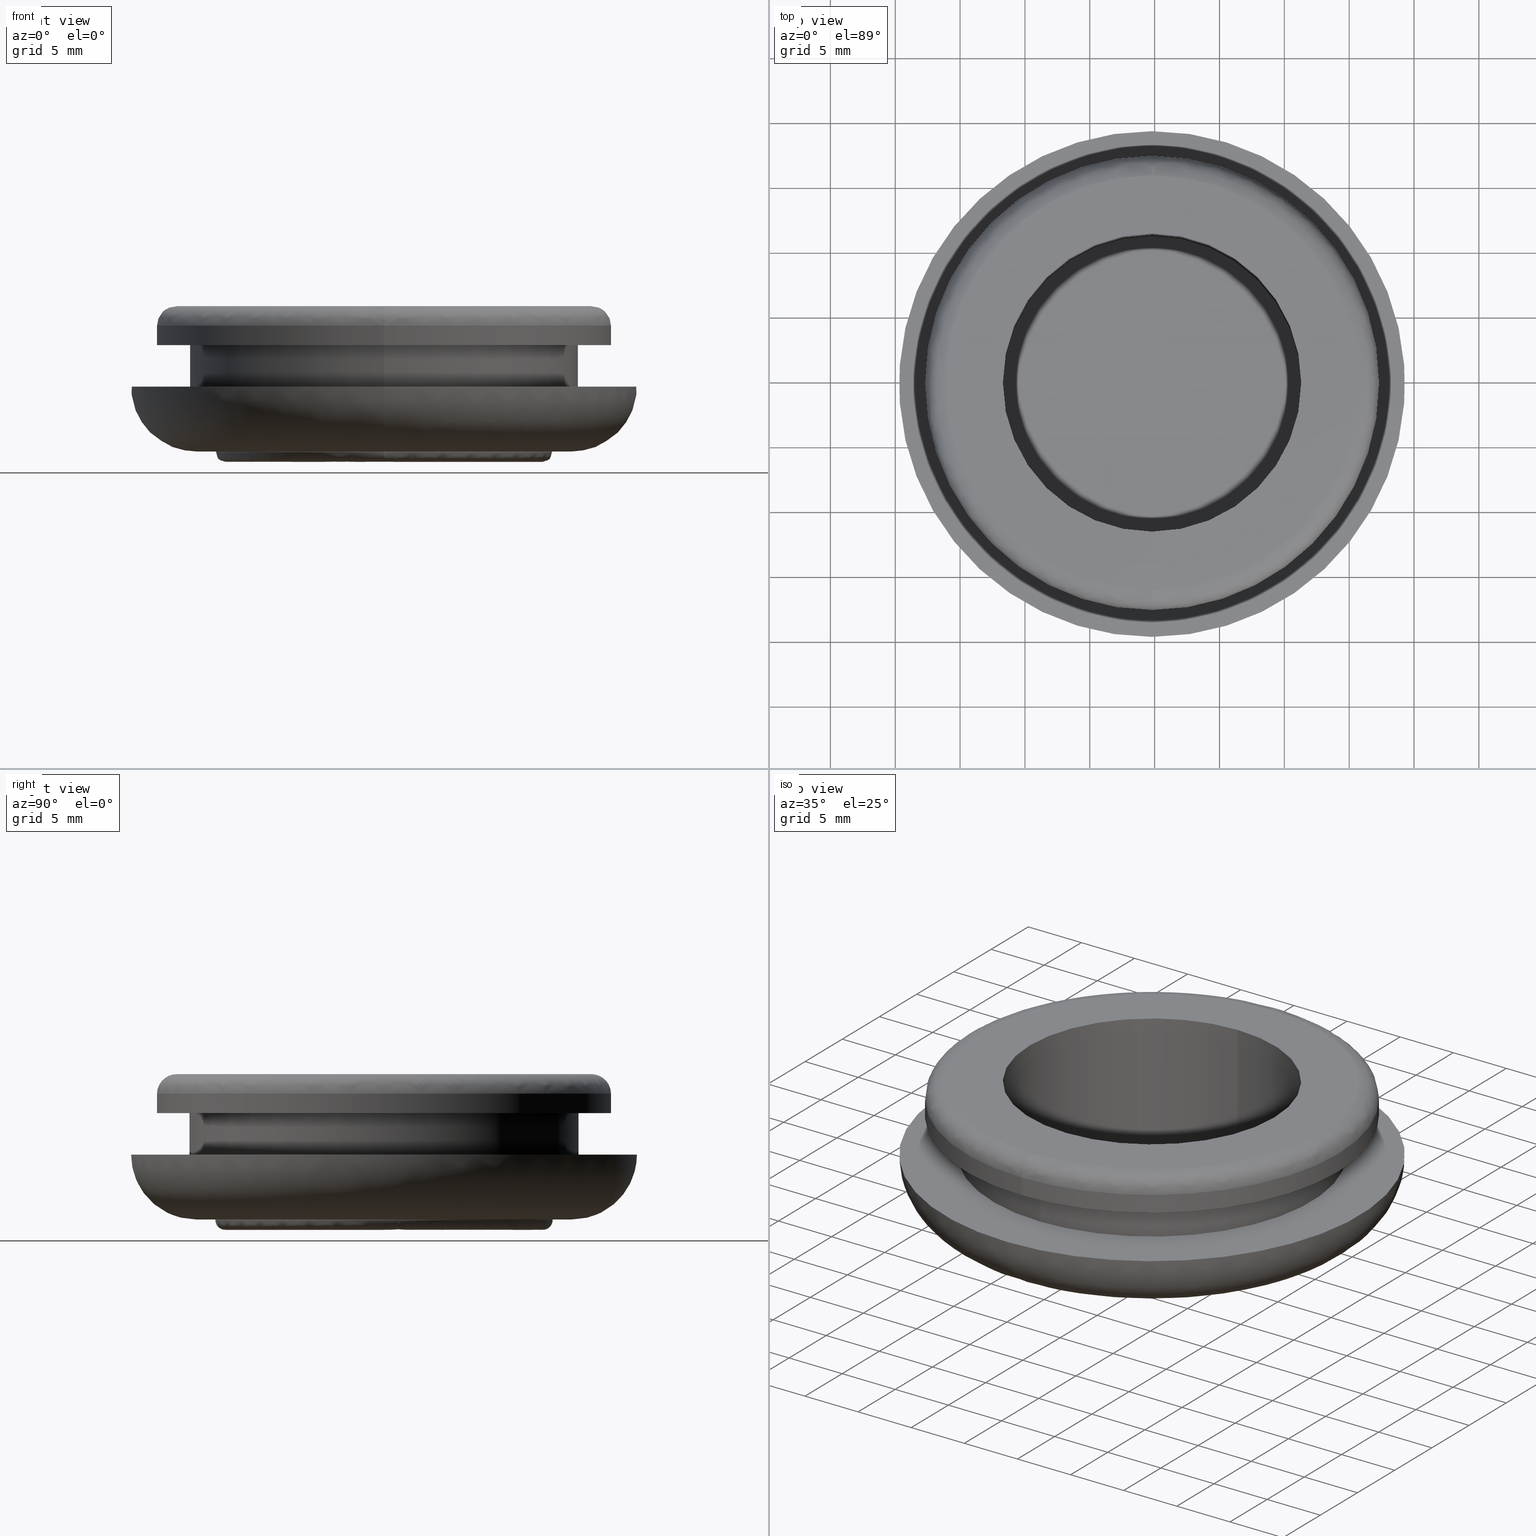
[diagram: canonical four-view strip — front | top / right | iso, engineering-drawing reading convention]
A machine part, canonical four-view strip (front | top / right | iso — engineering-drawing reading convention). The complete STEP part file that produces these views, byte-faithful:
ISO-10303-21;
HEADER;

FILE_DESCRIPTION( (''), '2;1');
FILE_NAME ('PC50.12492.TM_MG_8_CRUL_17802.stp','2019-12-19T14:50:51',(''),(''),'spGate 15.6.1','','');

FILE_SCHEMA (('AUTOMOTIVE_DESIGN'));
ENDSEC;

DATA;
#10=(GEOMETRIC_REPRESENTATION_CONTEXT(3) GLOBAL_UNCERTAINTY_ASSIGNED_CONTEXT((#12)) GLOBAL_UNIT_ASSIGNED_CONTEXT((#13,#14,#15)) REPRESENTATION_CONTEXT('ID1','3D'));
#12=UNCERTAINTY_MEASURE_WITH_UNIT(LENGTH_MEASURE(0.01),#16,'DISTANCE_ACCURACY_VALUE','Maximum model space distance between geometric entities at asserted connectivities');
#13=(NAMED_UNIT(*) SI_UNIT($,.STERADIAN.) SOLID_ANGLE_UNIT());
#14=(CONVERSION_BASED_UNIT('DEGREE',#28) NAMED_UNIT(#29) PLANE_ANGLE_UNIT());
#15=(LENGTH_UNIT() NAMED_UNIT(*) SI_UNIT(.MILLI.,.METRE.));
#16=(LENGTH_UNIT() NAMED_UNIT(*) SI_UNIT(.MILLI.,.METRE.));
#17=AXIS2_PLACEMENT_3D('',#31,#32,#33);
#18=AXIS2_PLACEMENT_3D('',#34,#35,#36);
#19=PRODUCT_DEFINITION('','',#41,#42);
#20=AXIS2_PLACEMENT_3D('',#43,#44,#45);
#21=SHAPE_REPRESENTATION('Assembly',(#18,#20),#10);
#22=AXIS2_PLACEMENT_3D('',#48,#49,#50);
#23=PRODUCT_DEFINITION('','',#55,#56);
#24=SHAPE_REPRESENTATION('grommet',(#22),#10);
#25=ITEM_DEFINED_TRANSFORMATION('','',#20,#22);
#26=(REPRESENTATION_RELATIONSHIP('','',#21,#24) REPRESENTATION_RELATIONSHIP_WITH_TRANSFORMATION(#25) SHAPE_REPRESENTATION_RELATIONSHIP());
#28=PLANE_ANGLE_MEASURE_WITH_UNIT(PLANE_ANGLE_MEASURE(0.01745329252),#30);
#29=DIMENSIONAL_EXPONENTS(0.0,0.0,0.0,0.0,0.0,0.0,0.0);
#30=(NAMED_UNIT(*) PLANE_ANGLE_UNIT() SI_UNIT($,.RADIAN.));
#31=CARTESIAN_POINT('',(0.00000000000E+000,0.00000000000E+000,0.00000000000E+000));
#32=DIRECTION('',(0.00000000000E+000,0.00000000000E+000,1.00000000000E+000));
#33=DIRECTION('',(1.00000000000E+000,0.00000000000E+000,0.00000000000E+000));
#34=CARTESIAN_POINT('',(0.00000000000E+000,0.00000000000E+000,0.00000000000E+000));
#35=DIRECTION('',(0.00000000000E+000,0.00000000000E+000,1.00000000000E+000));
#36=DIRECTION('',(1.00000000000E+000,0.00000000000E+000,0.00000000000E+000));
#37=APPLICATION_CONTEXT('configuration controlled 3d designs of mechanical parts and assemblies');
#38=APPLICATION_PROTOCOL_DEFINITION('International Standard','automotive_design',1999,#37);
#39=PRODUCT_CONTEXT('',#37,'');
#40=PRODUCT('Assembly','Assembly','',(#39));
#41=PRODUCT_DEFINITION_FORMATION_WITH_SPECIFIED_SOURCE('','',#40,.NOT_KNOWN.);
#42=PRODUCT_DEFINITION_CONTEXT('design',#37,'');
#43=CARTESIAN_POINT('',(9.79753599921E+000,9.80143969664E+000,1.58928591087E+001));
#44=DIRECTION('',(0.00000000000E+000,1.00000000000E+000,1.00000000000E-014));
#45=DIRECTION('',(1.00000000000E+000,0.00000000000E+000,0.00000000000E+000));
#46=PRODUCT_DEFINITION_SHAPE('','',#19);
#47=SHAPE_DEFINITION_REPRESENTATION(#46,#21);
#48=CARTESIAN_POINT('',(0.00000000000E+000,0.00000000000E+000,0.00000000000E+000));
#49=DIRECTION('',(0.00000000000E+000,0.00000000000E+000,1.00000000000E+000));
#50=DIRECTION('',(1.00000000000E+000,0.00000000000E+000,0.00000000000E+000));
#51=APPLICATION_CONTEXT('configuration controlled 3d designs of mechanical parts and assemblies');
#52=APPLICATION_PROTOCOL_DEFINITION('International Standard','automotive_design',1999,#51);
#53=PRODUCT_CONTEXT('',#51,'');
#54=PRODUCT('grommet','grommet','',(#53));
#55=PRODUCT_DEFINITION_FORMATION_WITH_SPECIFIED_SOURCE('','',#54,.NOT_KNOWN.);
#56=PRODUCT_DEFINITION_CONTEXT('design',#51,'');
#57=PRODUCT_DEFINITION_SHAPE('','',#23);
#58=SHAPE_DEFINITION_REPRESENTATION(#57,#24);
#59=NEXT_ASSEMBLY_USAGE_OCCURRENCE('','','',#19,#23,'');
#60=PRODUCT_DEFINITION_SHAPE('','',#59);
#61=CONTEXT_DEPENDENT_SHAPE_REPRESENTATION(#26,#60);
#63=SHAPE_REPRESENTATION_RELATIONSHIP('','',#24,#65);
#64=MANIFOLD_SOLID_BREP('grommet',#66);
#65=ADVANCED_BREP_SHAPE_REPRESENTATION('grommet',(#64),#10);
#66=CLOSED_SHELL('',(#75,#76,#77,#78,#79,#80,#81,#82,#83,#84,#85,#86,#87,#88,#89,#90,#91,#92,#93,#94,#95,#96));
#67=COLOUR_RGB('',0.00000000000E+000,0.00000000000E+000,0.00000000000E+000);
#68=FILL_AREA_STYLE_COLOUR('',#67);
#69=FILL_AREA_STYLE('',(#68));
#70=SURFACE_STYLE_FILL_AREA(#69);
#71=SURFACE_SIDE_STYLE('',(#70));
#72=SURFACE_STYLE_USAGE(.BOTH.,#71);
#73=PRESENTATION_STYLE_ASSIGNMENT((#72));
#74=STYLED_ITEM('',(#73),#64);
#75=ADVANCED_FACE('',(#98),#97,.T.);
#76=ADVANCED_FACE('',(#108),#107,.T.);
#77=ADVANCED_FACE('',(#118,#119),#117,.T.);
#78=ADVANCED_FACE('',(#129,#130),#128,.T.);
#79=ADVANCED_FACE('',(#140,#141),#139,.T.);
#80=ADVANCED_FACE('',(#151,#152),#150,.T.);
#81=ADVANCED_FACE('',(#162),#161,.F.);
#82=ADVANCED_FACE('',(#172),#171,.F.);
#83=ADVANCED_FACE('',(#182),#181,.T.);
#84=ADVANCED_FACE('',(#192),#191,.T.);
#85=ADVANCED_FACE('',(#202),#201,.T.);
#86=ADVANCED_FACE('',(#212),#211,.T.);
#87=ADVANCED_FACE('',(#222),#221,.T.);
#88=ADVANCED_FACE('',(#232),#231,.T.);
#89=ADVANCED_FACE('',(#242),#241,.T.);
#90=ADVANCED_FACE('',(#252),#251,.T.);
#91=ADVANCED_FACE('',(#262),#261,.T.);
#92=ADVANCED_FACE('',(#272),#271,.T.);
#93=ADVANCED_FACE('',(#282),#281,.F.);
#94=ADVANCED_FACE('',(#292),#291,.F.);
#95=ADVANCED_FACE('',(#302),#301,.T.);
#96=ADVANCED_FACE('',(#312),#311,.T.);
#97=PLANE('',#324);
#98=FACE_OUTER_BOUND('',#325,.T.);
#99=COLOUR_RGB('',8.00000011921E-001,8.00000011921E-001,1.00000000000E+000);
#100=FILL_AREA_STYLE_COLOUR('',#99);
#101=FILL_AREA_STYLE('',(#100));
#102=SURFACE_STYLE_FILL_AREA(#101);
#103=SURFACE_SIDE_STYLE('',(#102));
#104=SURFACE_STYLE_USAGE(.BOTH.,#103);
#105=PRESENTATION_STYLE_ASSIGNMENT((#104));
#106=STYLED_ITEM('',(#105),#75);
#107=PLANE('',#329);
#108=FACE_OUTER_BOUND('',#330,.T.);
#109=COLOUR_RGB('',8.00000011921E-001,8.00000011921E-001,1.00000000000E+000);
#110=FILL_AREA_STYLE_COLOUR('',#109);
#111=FILL_AREA_STYLE('',(#110));
#112=SURFACE_STYLE_FILL_AREA(#111);
#113=SURFACE_SIDE_STYLE('',(#112));
#114=SURFACE_STYLE_USAGE(.BOTH.,#113);
#115=PRESENTATION_STYLE_ASSIGNMENT((#114));
#116=STYLED_ITEM('',(#115),#76);
#117=PLANE('',#334);
#118=FACE_OUTER_BOUND('',#335,.T.);
#119=FACE_BOUND('',#336,.T.);
#120=COLOUR_RGB('',8.00000011921E-001,8.00000011921E-001,1.00000000000E+000);
#121=FILL_AREA_STYLE_COLOUR('',#120);
#122=FILL_AREA_STYLE('',(#121));
#123=SURFACE_STYLE_FILL_AREA(#122);
#124=SURFACE_SIDE_STYLE('',(#123));
#125=SURFACE_STYLE_USAGE(.BOTH.,#124);
#126=PRESENTATION_STYLE_ASSIGNMENT((#125));
#127=STYLED_ITEM('',(#126),#77);
#128=PLANE('',#340);
#129=FACE_OUTER_BOUND('',#341,.T.);
#130=FACE_BOUND('',#342,.T.);
#131=COLOUR_RGB('',8.00000011921E-001,8.00000011921E-001,1.00000000000E+000);
#132=FILL_AREA_STYLE_COLOUR('',#131);
#133=FILL_AREA_STYLE('',(#132));
#134=SURFACE_STYLE_FILL_AREA(#133);
#135=SURFACE_SIDE_STYLE('',(#134));
#136=SURFACE_STYLE_USAGE(.BOTH.,#135);
#137=PRESENTATION_STYLE_ASSIGNMENT((#136));
#138=STYLED_ITEM('',(#137),#78);
#139=PLANE('',#346);
#140=FACE_OUTER_BOUND('',#347,.T.);
#141=FACE_BOUND('',#348,.T.);
#142=COLOUR_RGB('',8.00000011921E-001,8.00000011921E-001,1.00000000000E+000);
#143=FILL_AREA_STYLE_COLOUR('',#142);
#144=FILL_AREA_STYLE('',(#143));
#145=SURFACE_STYLE_FILL_AREA(#144);
#146=SURFACE_SIDE_STYLE('',(#145));
#147=SURFACE_STYLE_USAGE(.BOTH.,#146);
#148=PRESENTATION_STYLE_ASSIGNMENT((#147));
#149=STYLED_ITEM('',(#148),#79);
#150=PLANE('',#352);
#151=FACE_OUTER_BOUND('',#353,.T.);
#152=FACE_BOUND('',#354,.T.);
#153=COLOUR_RGB('',8.00000011921E-001,8.00000011921E-001,1.00000000000E+000);
#154=FILL_AREA_STYLE_COLOUR('',#153);
#155=FILL_AREA_STYLE('',(#154));
#156=SURFACE_STYLE_FILL_AREA(#155);
#157=SURFACE_SIDE_STYLE('',(#156));
#158=SURFACE_STYLE_USAGE(.BOTH.,#157);
#159=PRESENTATION_STYLE_ASSIGNMENT((#158));
#160=STYLED_ITEM('',(#159),#80);
#161=CYLINDRICAL_SURFACE('',#358,1.15000000000E+001);
#162=FACE_OUTER_BOUND('',#359,.T.);
#163=COLOUR_RGB('',8.00000011921E-001,8.00000011921E-001,1.00000000000E+000);
#164=FILL_AREA_STYLE_COLOUR('',#163);
#165=FILL_AREA_STYLE('',(#164));
#166=SURFACE_STYLE_FILL_AREA(#165);
#167=SURFACE_SIDE_STYLE('',(#166));
#168=SURFACE_STYLE_USAGE(.BOTH.,#167);
#169=PRESENTATION_STYLE_ASSIGNMENT((#168));
#170=STYLED_ITEM('',(#169),#81);
#171=CYLINDRICAL_SURFACE('',#363,1.15000000000E+001);
#172=FACE_OUTER_BOUND('',#364,.T.);
#173=COLOUR_RGB('',8.00000011921E-001,8.00000011921E-001,1.00000000000E+000);
#174=FILL_AREA_STYLE_COLOUR('',#173);
#175=FILL_AREA_STYLE('',(#174));
#176=SURFACE_STYLE_FILL_AREA(#175);
#177=SURFACE_SIDE_STYLE('',(#176));
#178=SURFACE_STYLE_USAGE(.BOTH.,#177);
#179=PRESENTATION_STYLE_ASSIGNMENT((#178));
#180=STYLED_ITEM('',(#179),#82);
#181=( BOUNDED_SURFACE() B_SPLINE_SURFACE( 2,2,((#365,#366,#367,#368,#369),(#370,#371,#372,#373,#374),(#375,#376,#377,#378,#379),(#380,#381,#382,#383,#384),(#385,#386,#387,#388,#389)), .UNSPECIFIED.,.F.,.F.,.F.) B_SPLINE_SURFACE_WITH_KNOTS((3,2,3),(3,2,3),(0.00000000000E+000,5.00000000000E-001,1.00000000000E+000),(0.00000000000E+000,5.00000000000E-001,1.00000000000E+000), .UNSPECIFIED. ) GEOMETRIC_REPRESENTATION_ITEM() RATIONAL_B_SPLINE_SURFACE(((1.00000000000E+000,7.07106781187E-001,1.00000000000E+000,7.07106781187E-001,1.00000000000E+000),(7.07106781187E-001,5.00000000000E-001,7.07106781187E-001,5.00000000000E-001,7.07106781187E-001),(1.00000000000E+000,7.07106781187E-001,1.00000000000E+000,7.07106781187E-001,1.00000000000E+000),(7.07106781187E-001,5.00000000000E-001,7.07106781187E-001,5.00000000000E-001,7.07106781187E-001),(1.00000000000E+000,7.07106781187E-001,1.00000000000E+000,7.07106781187E-001,1.00000000000E+000))) REPRESENTATION_ITEM('') SURFACE() );
#182=FACE_OUTER_BOUND('',#390,.T.);
#183=COLOUR_RGB('',8.00000011921E-001,8.00000011921E-001,1.00000000000E+000);
#184=FILL_AREA_STYLE_COLOUR('',#183);
#185=FILL_AREA_STYLE('',(#184));
#186=SURFACE_STYLE_FILL_AREA(#185);
#187=SURFACE_SIDE_STYLE('',(#186));
#188=SURFACE_STYLE_USAGE(.BOTH.,#187);
#189=PRESENTATION_STYLE_ASSIGNMENT((#188));
#190=STYLED_ITEM('',(#189),#83);
#191=( BOUNDED_SURFACE() B_SPLINE_SURFACE( 2,2,((#391,#392,#393,#394,#395),(#396,#397,#398,#399,#400),(#401,#402,#403,#404,#405),(#406,#407,#408,#409,#410),(#411,#412,#413,#414,#415)), .UNSPECIFIED.,.F.,.F.,.F.) B_SPLINE_SURFACE_WITH_KNOTS((3,2,3),(3,2,3),(0.00000000000E+000,5.00000000000E-001,1.00000000000E+000),(0.00000000000E+000,5.00000000000E-001,1.00000000000E+000), .UNSPECIFIED. ) GEOMETRIC_REPRESENTATION_ITEM() RATIONAL_B_SPLINE_SURFACE(((1.00000000000E+000,7.07106781187E-001,1.00000000000E+000,7.07106781187E-001,1.00000000000E+000),(7.07106781187E-001,5.00000000000E-001,7.07106781187E-001,5.00000000000E-001,7.07106781187E-001),(1.00000000000E+000,7.07106781187E-001,1.00000000000E+000,7.07106781187E-001,1.00000000000E+000),(7.07106781187E-001,5.00000000000E-001,7.07106781187E-001,5.00000000000E-001,7.07106781187E-001),(1.00000000000E+000,7.07106781187E-001,1.00000000000E+000,7.07106781187E-001,1.00000000000E+000))) REPRESENTATION_ITEM('') SURFACE() );
#192=FACE_OUTER_BOUND('',#416,.T.);
#193=COLOUR_RGB('',8.00000011921E-001,8.00000011921E-001,1.00000000000E+000);
#194=FILL_AREA_STYLE_COLOUR('',#193);
#195=FILL_AREA_STYLE('',(#194));
#196=SURFACE_STYLE_FILL_AREA(#195);
#197=SURFACE_SIDE_STYLE('',(#196));
#198=SURFACE_STYLE_USAGE(.BOTH.,#197);
#199=PRESENTATION_STYLE_ASSIGNMENT((#198));
#200=STYLED_ITEM('',(#199),#84);
#201=CYLINDRICAL_SURFACE('',#420,1.30000000000E+001);
#202=FACE_OUTER_BOUND('',#421,.T.);
#203=COLOUR_RGB('',8.00000011921E-001,8.00000011921E-001,1.00000000000E+000);
#204=FILL_AREA_STYLE_COLOUR('',#203);
#205=FILL_AREA_STYLE('',(#204));
#206=SURFACE_STYLE_FILL_AREA(#205);
#207=SURFACE_SIDE_STYLE('',(#206));
#208=SURFACE_STYLE_USAGE(.BOTH.,#207);
#209=PRESENTATION_STYLE_ASSIGNMENT((#208));
#210=STYLED_ITEM('',(#209),#85);
#211=CYLINDRICAL_SURFACE('',#425,1.30000000000E+001);
#212=FACE_OUTER_BOUND('',#426,.T.);
#213=COLOUR_RGB('',8.00000011921E-001,8.00000011921E-001,1.00000000000E+000);
#214=FILL_AREA_STYLE_COLOUR('',#213);
#215=FILL_AREA_STYLE('',(#214));
#216=SURFACE_STYLE_FILL_AREA(#215);
#217=SURFACE_SIDE_STYLE('',(#216));
#218=SURFACE_STYLE_USAGE(.BOTH.,#217);
#219=PRESENTATION_STYLE_ASSIGNMENT((#218));
#220=STYLED_ITEM('',(#219),#86);
#221=( BOUNDED_SURFACE() B_SPLINE_SURFACE( 2,2,((#427,#428,#429,#430,#431),(#432,#433,#434,#435,#436),(#437,#438,#439,#440,#441),(#442,#443,#444,#445,#446),(#447,#448,#449,#450,#451)), .UNSPECIFIED.,.F.,.F.,.F.) B_SPLINE_SURFACE_WITH_KNOTS((3,2,3),(3,2,3),(0.00000000000E+000,5.00000000000E-001,1.00000000000E+000),(0.00000000000E+000,5.00000000000E-001,1.00000000000E+000), .UNSPECIFIED. ) GEOMETRIC_REPRESENTATION_ITEM() RATIONAL_B_SPLINE_SURFACE(((1.00000000000E+000,7.07106781187E-001,1.00000000000E+000,7.07106781187E-001,1.00000000000E+000),(7.07106781187E-001,5.00000000000E-001,7.07106781187E-001,5.00000000000E-001,7.07106781187E-001),(1.00000000000E+000,7.07106781187E-001,1.00000000000E+000,7.07106781187E-001,1.00000000000E+000),(7.07106781187E-001,5.00000000000E-001,7.07106781187E-001,5.00000000000E-001,7.07106781187E-001),(1.00000000000E+000,7.07106781187E-001,1.00000000000E+000,7.07106781187E-001,1.00000000000E+000))) REPRESENTATION_ITEM('') SURFACE() );
#222=FACE_OUTER_BOUND('',#452,.T.);
#223=COLOUR_RGB('',8.00000011921E-001,8.00000011921E-001,1.00000000000E+000);
#224=FILL_AREA_STYLE_COLOUR('',#223);
#225=FILL_AREA_STYLE('',(#224));
#226=SURFACE_STYLE_FILL_AREA(#225);
#227=SURFACE_SIDE_STYLE('',(#226));
#228=SURFACE_STYLE_USAGE(.BOTH.,#227);
#229=PRESENTATION_STYLE_ASSIGNMENT((#228));
#230=STYLED_ITEM('',(#229),#87);
#231=( BOUNDED_SURFACE() B_SPLINE_SURFACE( 2,2,((#453,#454,#455,#456,#457),(#458,#459,#460,#461,#462),(#463,#464,#465,#466,#467),(#468,#469,#470,#471,#472),(#473,#474,#475,#476,#477)), .UNSPECIFIED.,.F.,.F.,.F.) B_SPLINE_SURFACE_WITH_KNOTS((3,2,3),(3,2,3),(0.00000000000E+000,5.00000000000E-001,1.00000000000E+000),(0.00000000000E+000,5.00000000000E-001,1.00000000000E+000), .UNSPECIFIED. ) GEOMETRIC_REPRESENTATION_ITEM() RATIONAL_B_SPLINE_SURFACE(((1.00000000000E+000,7.07106781187E-001,1.00000000000E+000,7.07106781187E-001,1.00000000000E+000),(7.07106781187E-001,5.00000000000E-001,7.07106781187E-001,5.00000000000E-001,7.07106781187E-001),(1.00000000000E+000,7.07106781187E-001,1.00000000000E+000,7.07106781187E-001,1.00000000000E+000),(7.07106781187E-001,5.00000000000E-001,7.07106781187E-001,5.00000000000E-001,7.07106781187E-001),(1.00000000000E+000,7.07106781187E-001,1.00000000000E+000,7.07106781187E-001,1.00000000000E+000))) REPRESENTATION_ITEM('') SURFACE() );
#232=FACE_OUTER_BOUND('',#478,.T.);
#233=COLOUR_RGB('',8.00000011921E-001,8.00000011921E-001,1.00000000000E+000);
#234=FILL_AREA_STYLE_COLOUR('',#233);
#235=FILL_AREA_STYLE('',(#234));
#236=SURFACE_STYLE_FILL_AREA(#235);
#237=SURFACE_SIDE_STYLE('',(#236));
#238=SURFACE_STYLE_USAGE(.BOTH.,#237);
#239=PRESENTATION_STYLE_ASSIGNMENT((#238));
#240=STYLED_ITEM('',(#239),#88);
#241=CYLINDRICAL_SURFACE('',#482,1.75000000000E+001);
#242=FACE_OUTER_BOUND('',#483,.T.);
#243=COLOUR_RGB('',8.00000011921E-001,8.00000011921E-001,1.00000000000E+000);
#244=FILL_AREA_STYLE_COLOUR('',#243);
#245=FILL_AREA_STYLE('',(#244));
#246=SURFACE_STYLE_FILL_AREA(#245);
#247=SURFACE_SIDE_STYLE('',(#246));
#248=SURFACE_STYLE_USAGE(.BOTH.,#247);
#249=PRESENTATION_STYLE_ASSIGNMENT((#248));
#250=STYLED_ITEM('',(#249),#89);
#251=CYLINDRICAL_SURFACE('',#487,1.75000000000E+001);
#252=FACE_OUTER_BOUND('',#488,.T.);
#253=COLOUR_RGB('',8.00000011921E-001,8.00000011921E-001,1.00000000000E+000);
#254=FILL_AREA_STYLE_COLOUR('',#253);
#255=FILL_AREA_STYLE('',(#254));
#256=SURFACE_STYLE_FILL_AREA(#255);
#257=SURFACE_SIDE_STYLE('',(#256));
#258=SURFACE_STYLE_USAGE(.BOTH.,#257);
#259=PRESENTATION_STYLE_ASSIGNMENT((#258));
#260=STYLED_ITEM('',(#259),#90);
#261=( BOUNDED_SURFACE() B_SPLINE_SURFACE( 2,2,((#489,#490,#491,#492,#493),(#494,#495,#496,#497,#498),(#499,#500,#501,#502,#503),(#504,#505,#506,#507,#508),(#509,#510,#511,#512,#513)), .UNSPECIFIED.,.F.,.F.,.F.) B_SPLINE_SURFACE_WITH_KNOTS((3,2,3),(3,2,3),(0.00000000000E+000,5.00000000000E-001,1.00000000000E+000),(0.00000000000E+000,5.00000000000E-001,1.00000000000E+000), .UNSPECIFIED. ) GEOMETRIC_REPRESENTATION_ITEM() RATIONAL_B_SPLINE_SURFACE(((1.00000000000E+000,7.07106781187E-001,1.00000000000E+000,7.07106781187E-001,1.00000000000E+000),(7.07106781187E-001,5.00000000000E-001,7.07106781187E-001,5.00000000000E-001,7.07106781187E-001),(1.00000000000E+000,7.07106781187E-001,1.00000000000E+000,7.07106781187E-001,1.00000000000E+000),(7.07106781187E-001,5.00000000000E-001,7.07106781187E-001,5.00000000000E-001,7.07106781187E-001),(1.00000000000E+000,7.07106781187E-001,1.00000000000E+000,7.07106781187E-001,1.00000000000E+000))) REPRESENTATION_ITEM('') SURFACE() );
#262=FACE_OUTER_BOUND('',#514,.T.);
#263=COLOUR_RGB('',8.00000011921E-001,8.00000011921E-001,1.00000000000E+000);
#264=FILL_AREA_STYLE_COLOUR('',#263);
#265=FILL_AREA_STYLE('',(#264));
#266=SURFACE_STYLE_FILL_AREA(#265);
#267=SURFACE_SIDE_STYLE('',(#266));
#268=SURFACE_STYLE_USAGE(.BOTH.,#267);
#269=PRESENTATION_STYLE_ASSIGNMENT((#268));
#270=STYLED_ITEM('',(#269),#91);
#271=( BOUNDED_SURFACE() B_SPLINE_SURFACE( 2,2,((#515,#516,#517,#518,#519),(#520,#521,#522,#523,#524),(#525,#526,#527,#528,#529),(#530,#531,#532,#533,#534),(#535,#536,#537,#538,#539)), .UNSPECIFIED.,.F.,.F.,.F.) B_SPLINE_SURFACE_WITH_KNOTS((3,2,3),(3,2,3),(0.00000000000E+000,5.00000000000E-001,1.00000000000E+000),(0.00000000000E+000,5.00000000000E-001,1.00000000000E+000), .UNSPECIFIED. ) GEOMETRIC_REPRESENTATION_ITEM() RATIONAL_B_SPLINE_SURFACE(((1.00000000000E+000,7.07106781187E-001,1.00000000000E+000,7.07106781187E-001,1.00000000000E+000),(7.07106781187E-001,5.00000000000E-001,7.07106781187E-001,5.00000000000E-001,7.07106781187E-001),(1.00000000000E+000,7.07106781187E-001,1.00000000000E+000,7.07106781187E-001,1.00000000000E+000),(7.07106781187E-001,5.00000000000E-001,7.07106781187E-001,5.00000000000E-001,7.07106781187E-001),(1.00000000000E+000,7.07106781187E-001,1.00000000000E+000,7.07106781187E-001,1.00000000000E+000))) REPRESENTATION_ITEM('') SURFACE() );
#272=FACE_OUTER_BOUND('',#540,.T.);
#273=COLOUR_RGB('',8.00000011921E-001,8.00000011921E-001,1.00000000000E+000);
#274=FILL_AREA_STYLE_COLOUR('',#273);
#275=FILL_AREA_STYLE('',(#274));
#276=SURFACE_STYLE_FILL_AREA(#275);
#277=SURFACE_SIDE_STYLE('',(#276));
#278=SURFACE_STYLE_USAGE(.BOTH.,#277);
#279=PRESENTATION_STYLE_ASSIGNMENT((#278));
#280=STYLED_ITEM('',(#279),#92);
#281=CYLINDRICAL_SURFACE('',#544,1.15000000000E+001);
#282=FACE_OUTER_BOUND('',#545,.T.);
#283=COLOUR_RGB('',8.00000011921E-001,8.00000011921E-001,1.00000000000E+000);
#284=FILL_AREA_STYLE_COLOUR('',#283);
#285=FILL_AREA_STYLE('',(#284));
#286=SURFACE_STYLE_FILL_AREA(#285);
#287=SURFACE_SIDE_STYLE('',(#286));
#288=SURFACE_STYLE_USAGE(.BOTH.,#287);
#289=PRESENTATION_STYLE_ASSIGNMENT((#288));
#290=STYLED_ITEM('',(#289),#93);
#291=CYLINDRICAL_SURFACE('',#549,1.15000000000E+001);
#292=FACE_OUTER_BOUND('',#550,.T.);
#293=COLOUR_RGB('',8.00000011921E-001,8.00000011921E-001,1.00000000000E+000);
#294=FILL_AREA_STYLE_COLOUR('',#293);
#295=FILL_AREA_STYLE('',(#294));
#296=SURFACE_STYLE_FILL_AREA(#295);
#297=SURFACE_SIDE_STYLE('',(#296));
#298=SURFACE_STYLE_USAGE(.BOTH.,#297);
#299=PRESENTATION_STYLE_ASSIGNMENT((#298));
#300=STYLED_ITEM('',(#299),#94);
#301=CYLINDRICAL_SURFACE('',#554,1.50000000000E+001);
#302=FACE_OUTER_BOUND('',#555,.T.);
#303=COLOUR_RGB('',8.00000011921E-001,8.00000011921E-001,1.00000000000E+000);
#304=FILL_AREA_STYLE_COLOUR('',#303);
#305=FILL_AREA_STYLE('',(#304));
#306=SURFACE_STYLE_FILL_AREA(#305);
#307=SURFACE_SIDE_STYLE('',(#306));
#308=SURFACE_STYLE_USAGE(.BOTH.,#307);
#309=PRESENTATION_STYLE_ASSIGNMENT((#308));
#310=STYLED_ITEM('',(#309),#95);
#311=CYLINDRICAL_SURFACE('',#559,1.50000000000E+001);
#312=FACE_OUTER_BOUND('',#560,.T.);
#313=COLOUR_RGB('',8.00000011921E-001,8.00000011921E-001,1.00000000000E+000);
#314=FILL_AREA_STYLE_COLOUR('',#313);
#315=FILL_AREA_STYLE('',(#314));
#316=SURFACE_STYLE_FILL_AREA(#315);
#317=SURFACE_SIDE_STYLE('',(#316));
#318=SURFACE_STYLE_USAGE(.BOTH.,#317);
#319=PRESENTATION_STYLE_ASSIGNMENT((#318));
#320=STYLED_ITEM('',(#319),#96);
#321=CARTESIAN_POINT('',(-2.39023011445E+001,1.12000000000E+001,-1.49500000000E+001));
#322=DIRECTION('',(-0.00000000000E+000,1.00000000000E+000,0.00000000000E+000));
#323=DIRECTION('',(0.00000000000E+000,0.00000000000E+000,1.00000000000E+000));
#324=AXIS2_PLACEMENT_3D('',#321,#322,#323);
#325=EDGE_LOOP('',(#561,#562));
#326=CARTESIAN_POINT('',(-2.39023011445E+001,1.07000000000E+001,2.64500000000E+001));
#327=DIRECTION('',(0.00000000000E+000,-1.00000000000E+000,0.00000000000E+000));
#328=DIRECTION('',(0.00000000000E+000,0.00000000000E+000,-1.00000000000E+000));
#329=AXIS2_PLACEMENT_3D('',#326,#327,#328);
#330=EDGE_LOOP('',(#563,#564));
#331=CARTESIAN_POINT('',(-3.32553755053E+001,-2.57391713330E-015,3.68000000000E+001));
#332=DIRECTION('',(0.00000000000E+000,-1.00000000000E+000,0.00000000000E+000));
#333=DIRECTION('',(0.00000000000E+000,0.00000000000E+000,-1.00000000000E+000));
#334=AXIS2_PLACEMENT_3D('',#331,#332,#333);
#335=EDGE_LOOP('',(#565,#566));
#336=EDGE_LOOP('',(#567,#568));
#337=CARTESIAN_POINT('',(-3.63730669589E+001,3.00000000000E+000,-4.02500000000E+001));
#338=DIRECTION('',(-0.00000000000E+000,1.00000000000E+000,0.00000000000E+000));
#339=DIRECTION('',(0.00000000000E+000,0.00000000000E+000,1.00000000000E+000));
#340=AXIS2_PLACEMENT_3D('',#337,#338,#339);
#341=EDGE_LOOP('',(#569,#570));
#342=EDGE_LOOP('',(#571,#572));
#343=CARTESIAN_POINT('',(-4.05299888971E+001,6.20000000000E+000,4.48500000000E+001));
#344=DIRECTION('',(0.00000000000E+000,-1.00000000000E+000,0.00000000000E+000));
#345=DIRECTION('',(0.00000000000E+000,0.00000000000E+000,-1.00000000000E+000));
#346=AXIS2_PLACEMENT_3D('',#343,#344,#345);
#347=EDGE_LOOP('',(#573,#574));
#348=EDGE_LOOP('',(#575,#576));
#349=CARTESIAN_POINT('',(-3.01376840517E+001,1.12000000000E+001,-3.33500000000E+001));
#350=DIRECTION('',(-0.00000000000E+000,1.00000000000E+000,0.00000000000E+000));
#351=DIRECTION('',(0.00000000000E+000,0.00000000000E+000,1.00000000000E+000));
#352=AXIS2_PLACEMENT_3D('',#349,#350,#351);
#353=EDGE_LOOP('',(#577,#578));
#354=EDGE_LOOP('',(#579,#580));
#355=CARTESIAN_POINT('',(0.00000000000E+000,1.12249999046E+001,0.00000000000E+000));
#356=DIRECTION('',(-0.00000000000E+000,1.00000000000E+000,-0.00000000000E+000));
#357=DIRECTION('',(0.00000000000E+000,0.00000000000E+000,1.00000000000E+000));
#358=AXIS2_PLACEMENT_3D('',#355,#356,#357);
#359=EDGE_LOOP('',(#581,#582,#583,#584));
#360=CARTESIAN_POINT('',(0.00000000000E+000,1.12249999046E+001,0.00000000000E+000));
#361=DIRECTION('',(-0.00000000000E+000,1.00000000000E+000,-0.00000000000E+000));
#362=DIRECTION('',(0.00000000000E+000,0.00000000000E+000,1.00000000000E+000));
#363=AXIS2_PLACEMENT_3D('',#360,#361,#362);
#364=EDGE_LOOP('',(#585,#586,#587,#588));
#365=CARTESIAN_POINT('',(-1.40829730690E-015,1.12500000000E+001,1.15000000000E+001));
#366=CARTESIAN_POINT('',(-1.40829730690E-015,1.20000000000E+001,1.15000000000E+001));
#367=CARTESIAN_POINT('',(-1.50014278343E-015,1.20000000000E+001,1.22500000000E+001));
#368=CARTESIAN_POINT('',(-1.59198825997E-015,1.20000000000E+001,1.30000000000E+001));
#369=CARTESIAN_POINT('',(-1.59198825997E-015,1.12500000000E+001,1.30000000000E+001));
#370=CARTESIAN_POINT('',(-1.15000000000E+001,1.12500000000E+001,1.15000000000E+001));
#371=CARTESIAN_POINT('',(-1.15000000000E+001,1.20000000000E+001,1.15000000000E+001));
#372=CARTESIAN_POINT('',(-1.22500000000E+001,1.20000000000E+001,1.22500000000E+001));
#373=CARTESIAN_POINT('',(-1.30000000000E+001,1.20000000000E+001,1.30000000000E+001));
#374=CARTESIAN_POINT('',(-1.30000000000E+001,1.12500000000E+001,1.30000000000E+001));
#375=CARTESIAN_POINT('',(-1.15000000000E+001,1.12500000000E+001,-7.04125397386E-016));
#376=CARTESIAN_POINT('',(-1.15000000000E+001,1.20000000000E+001,-7.04125397386E-016));
#377=CARTESIAN_POINT('',(-1.22500000000E+001,1.20000000000E+001,-7.50046618955E-016));
#378=CARTESIAN_POINT('',(-1.30000000000E+001,1.20000000000E+001,-7.95967840523E-016));
#379=CARTESIAN_POINT('',(-1.30000000000E+001,1.12500000000E+001,-7.95967840523E-016));
#380=CARTESIAN_POINT('',(-1.15000000000E+001,1.12500000000E+001,-1.15000000000E+001));
#381=CARTESIAN_POINT('',(-1.15000000000E+001,1.20000000000E+001,-1.15000000000E+001));
#382=CARTESIAN_POINT('',(-1.22500000000E+001,1.20000000000E+001,-1.22500000000E+001));
#383=CARTESIAN_POINT('',(-1.30000000000E+001,1.20000000000E+001,-1.30000000000E+001));
#384=CARTESIAN_POINT('',(-1.30000000000E+001,1.12500000000E+001,-1.30000000000E+001));
#385=CARTESIAN_POINT('',(-4.65121237223E-020,1.12500000000E+001,-1.15000000000E+001));
#386=CARTESIAN_POINT('',(-4.65121237223E-020,1.20000000000E+001,-1.15000000000E+001));
#387=CARTESIAN_POINT('',(-4.95455230956E-020,1.20000000000E+001,-1.22500000000E+001));
#388=CARTESIAN_POINT('',(-5.25789224689E-020,1.20000000000E+001,-1.30000000000E+001));
#389=CARTESIAN_POINT('',(-5.25789224687E-020,1.12500000000E+001,-1.30000000000E+001));
#390=EDGE_LOOP('',(#589,#590,#591,#592));
#391=CARTESIAN_POINT('',(-4.65121237223E-020,1.12500000000E+001,-1.15000000000E+001));
#392=CARTESIAN_POINT('',(-4.65121237223E-020,1.20000000000E+001,-1.15000000000E+001));
#393=CARTESIAN_POINT('',(-4.95455230955E-020,1.20000000000E+001,-1.22500000000E+001));
#394=CARTESIAN_POINT('',(-5.25789224687E-020,1.20000000000E+001,-1.30000000000E+001));
#395=CARTESIAN_POINT('',(-5.25789224687E-020,1.12500000000E+001,-1.30000000000E+001));
#396=CARTESIAN_POINT('',(1.15000000000E+001,1.12500000000E+001,-1.15000000000E+001));
#397=CARTESIAN_POINT('',(1.15000000000E+001,1.20000000000E+001,-1.15000000000E+001));
#398=CARTESIAN_POINT('',(1.22500000000E+001,1.20000000000E+001,-1.22500000000E+001));
#399=CARTESIAN_POINT('',(1.30000000000E+001,1.20000000000E+001,-1.30000000000E+001));
#400=CARTESIAN_POINT('',(1.30000000000E+001,1.12500000000E+001,-1.30000000000E+001));
#401=CARTESIAN_POINT('',(1.15000000000E+001,1.12500000000E+001,-7.04218421633E-016));
#402=CARTESIAN_POINT('',(1.15000000000E+001,1.20000000000E+001,-7.04218421633E-016));
#403=CARTESIAN_POINT('',(1.22500000000E+001,1.20000000000E+001,-7.50145710001E-016));
#404=CARTESIAN_POINT('',(1.30000000000E+001,1.20000000000E+001,-7.96072998368E-016));
#405=CARTESIAN_POINT('',(1.30000000000E+001,1.12500000000E+001,-7.96072998368E-016));
#406=CARTESIAN_POINT('',(1.15000000000E+001,1.12500000000E+001,1.15000000000E+001));
#407=CARTESIAN_POINT('',(1.15000000000E+001,1.20000000000E+001,1.15000000000E+001));
#408=CARTESIAN_POINT('',(1.22500000000E+001,1.20000000000E+001,1.22500000000E+001));
#409=CARTESIAN_POINT('',(1.30000000000E+001,1.20000000000E+001,1.30000000000E+001));
#410=CARTESIAN_POINT('',(1.30000000000E+001,1.12500000000E+001,1.30000000000E+001));
#411=CARTESIAN_POINT('',(1.40839033114E-015,1.12500000000E+001,1.15000000000E+001));
#412=CARTESIAN_POINT('',(1.40839033114E-015,1.20000000000E+001,1.15000000000E+001));
#413=CARTESIAN_POINT('',(1.50024187448E-015,1.20000000000E+001,1.22500000000E+001));
#414=CARTESIAN_POINT('',(1.59209341781E-015,1.20000000000E+001,1.30000000000E+001));
#415=CARTESIAN_POINT('',(1.59209341781E-015,1.12500000000E+001,1.30000000000E+001));
#416=EDGE_LOOP('',(#593,#594,#595,#596));
#417=CARTESIAN_POINT('',(0.00000000000E+000,1.12249999046E+001,0.00000000000E+000));
#418=DIRECTION('',(-0.00000000000E+000,1.00000000000E+000,-0.00000000000E+000));
#419=DIRECTION('',(0.00000000000E+000,0.00000000000E+000,1.00000000000E+000));
#420=AXIS2_PLACEMENT_3D('',#417,#418,#419);
#421=EDGE_LOOP('',(#597,#598,#599,#600));
#422=CARTESIAN_POINT('',(0.00000000000E+000,1.12249999046E+001,0.00000000000E+000));
#423=DIRECTION('',(-0.00000000000E+000,1.00000000000E+000,-0.00000000000E+000));
#424=DIRECTION('',(0.00000000000E+000,0.00000000000E+000,1.00000000000E+000));
#425=AXIS2_PLACEMENT_3D('',#422,#423,#424);
#426=EDGE_LOOP('',(#601,#602,#603,#604));
#427=CARTESIAN_POINT('',(-1.16337603613E-015,6.20000000000E+000,9.50000000000E+000));
#428=CARTESIAN_POINT('',(-1.16337603613E-015,1.12000000000E+001,9.50000000000E+000));
#429=CARTESIAN_POINT('',(-1.77567921304E-015,1.12000000000E+001,1.45000000000E+001));
#430=CARTESIAN_POINT('',(-2.38798238995E-015,1.12000000000E+001,1.95000000000E+001));
#431=CARTESIAN_POINT('',(-2.38798238995E-015,6.20000000000E+000,1.95000000000E+001));
#432=CARTESIAN_POINT('',(-9.50000000000E+000,6.20000000000E+000,9.50000000000E+000));
#433=CARTESIAN_POINT('',(-9.50000000000E+000,1.12000000000E+001,9.50000000000E+000));
#434=CARTESIAN_POINT('',(-1.45000000000E+001,1.12000000000E+001,1.45000000000E+001));
#435=CARTESIAN_POINT('',(-1.95000000000E+001,1.12000000000E+001,1.95000000000E+001));
#436=CARTESIAN_POINT('',(-1.95000000000E+001,6.20000000000E+000,1.95000000000E+001));
#437=CARTESIAN_POINT('',(-9.50000000000E+000,6.20000000000E+000,-5.81668806536E-016));
#438=CARTESIAN_POINT('',(-9.50000000000E+000,1.12000000000E+001,-5.81668806536E-016));
#439=CARTESIAN_POINT('',(-1.45000000000E+001,1.12000000000E+001,-8.87810283661E-016));
#440=CARTESIAN_POINT('',(-1.95000000000E+001,1.12000000000E+001,-1.19395176078E-015));
#441=CARTESIAN_POINT('',(-1.95000000000E+001,6.20000000000E+000,-1.19395176078E-015));
#442=CARTESIAN_POINT('',(-9.50000000000E+000,6.20000000000E+000,-9.50000000000E+000));
#443=CARTESIAN_POINT('',(-9.50000000000E+000,1.12000000000E+001,-9.50000000000E+000));
#444=CARTESIAN_POINT('',(-1.45000000000E+001,1.12000000000E+001,-1.45000000000E+001));
#445=CARTESIAN_POINT('',(-1.95000000000E+001,1.12000000000E+001,-1.95000000000E+001));
#446=CARTESIAN_POINT('',(-1.95000000000E+001,6.20000000000E+000,-1.95000000000E+001));
#447=CARTESIAN_POINT('',(-3.84230587271E-020,6.20000000000E+000,-9.50000000000E+000));
#448=CARTESIAN_POINT('',(-3.84230587272E-020,1.12000000000E+001,-9.50000000000E+000));
#449=CARTESIAN_POINT('',(-5.86457212152E-020,1.12000000000E+001,-1.45000000000E+001));
#450=CARTESIAN_POINT('',(-7.88683837035E-020,1.12000000000E+001,-1.95000000000E+001));
#451=CARTESIAN_POINT('',(-7.88683837033E-020,6.20000000000E+000,-1.95000000000E+001));
#452=EDGE_LOOP('',(#605,#606,#607,#608));
#453=CARTESIAN_POINT('',(-3.84230587272E-020,6.20000000000E+000,-9.50000000000E+000));
#454=CARTESIAN_POINT('',(-3.84230587272E-020,1.12000000000E+001,-9.50000000000E+000));
#455=CARTESIAN_POINT('',(-5.86457212151E-020,1.12000000000E+001,-1.45000000000E+001));
#456=CARTESIAN_POINT('',(-7.88683837031E-020,1.12000000000E+001,-1.95000000000E+001));
#457=CARTESIAN_POINT('',(-7.88683837031E-020,6.20000000000E+000,-1.95000000000E+001));
#458=CARTESIAN_POINT('',(9.50000000000E+000,6.20000000000E+000,-9.50000000000E+000));
#459=CARTESIAN_POINT('',(9.50000000000E+000,1.12000000000E+001,-9.50000000000E+000));
#460=CARTESIAN_POINT('',(1.45000000000E+001,1.12000000000E+001,-1.45000000000E+001));
#461=CARTESIAN_POINT('',(1.95000000000E+001,1.12000000000E+001,-1.95000000000E+001));
#462=CARTESIAN_POINT('',(1.95000000000E+001,6.20000000000E+000,-1.95000000000E+001));
#463=CARTESIAN_POINT('',(9.50000000000E+000,6.20000000000E+000,-5.81745652654E-016));
#464=CARTESIAN_POINT('',(9.50000000000E+000,1.12000000000E+001,-5.81745652654E-016));
#465=CARTESIAN_POINT('',(1.45000000000E+001,1.12000000000E+001,-8.87927575103E-016));
#466=CARTESIAN_POINT('',(1.95000000000E+001,1.12000000000E+001,-1.19410949755E-015));
#467=CARTESIAN_POINT('',(1.95000000000E+001,6.20000000000E+000,-1.19410949755E-015));
#468=CARTESIAN_POINT('',(9.50000000000E+000,6.20000000000E+000,9.50000000000E+000));
#469=CARTESIAN_POINT('',(9.50000000000E+000,1.12000000000E+001,9.50000000000E+000));
#470=CARTESIAN_POINT('',(1.45000000000E+001,1.12000000000E+001,1.45000000000E+001));
#471=CARTESIAN_POINT('',(1.95000000000E+001,1.12000000000E+001,1.95000000000E+001));
#472=CARTESIAN_POINT('',(1.95000000000E+001,6.20000000000E+000,1.95000000000E+001));
#473=CARTESIAN_POINT('',(1.16345288225E-015,6.20000000000E+000,9.50000000000E+000));
#474=CARTESIAN_POINT('',(1.16345288225E-015,1.12000000000E+001,9.50000000000E+000));
#475=CARTESIAN_POINT('',(1.77579650448E-015,1.12000000000E+001,1.45000000000E+001));
#476=CARTESIAN_POINT('',(2.38814012672E-015,1.12000000000E+001,1.95000000000E+001));
#477=CARTESIAN_POINT('',(2.38814012672E-015,6.20000000000E+000,1.95000000000E+001));
#478=EDGE_LOOP('',(#609,#610,#611,#612));
#479=CARTESIAN_POINT('',(0.00000000000E+000,2.25000000000E+000,0.00000000000E+000));
#480=DIRECTION('',(-0.00000000000E+000,1.00000000000E+000,-0.00000000000E+000));
#481=DIRECTION('',(0.00000000000E+000,0.00000000000E+000,1.00000000000E+000));
#482=AXIS2_PLACEMENT_3D('',#479,#480,#481);
#483=EDGE_LOOP('',(#613,#614,#615,#616));
#484=CARTESIAN_POINT('',(0.00000000000E+000,2.25000000000E+000,0.00000000000E+000));
#485=DIRECTION('',(-0.00000000000E+000,1.00000000000E+000,-0.00000000000E+000));
#486=DIRECTION('',(0.00000000000E+000,0.00000000000E+000,1.00000000000E+000));
#487=AXIS2_PLACEMENT_3D('',#484,#485,#486);
#488=EDGE_LOOP('',(#617,#618,#619,#620));
#489=CARTESIAN_POINT('',(-2.14306111919E-015,1.50000000000E+000,1.75000000000E+001));
#490=CARTESIAN_POINT('',(-2.14306111919E-015,-8.79251776863E-015,1.75000000000E+001));
#491=CARTESIAN_POINT('',(-1.95937016612E-015,-3.33066907388E-015,1.60000000000E+001));
#492=CARTESIAN_POINT('',(-1.77567921304E-015,2.51214793389E-015,1.45000000000E+001));
#493=CARTESIAN_POINT('',(-1.77567921304E-015,1.50000000000E+000,1.45000000000E+001));
#494=CARTESIAN_POINT('',(-1.75000000000E+001,1.50000000000E+000,1.75000000000E+001));
#495=CARTESIAN_POINT('',(-1.75000000000E+001,-8.79251776863E-015,1.75000000000E+001));
#496=CARTESIAN_POINT('',(-1.60000000000E+001,-3.33066907388E-015,1.60000000000E+001));
#497=CARTESIAN_POINT('',(-1.45000000000E+001,2.51214793389E-015,1.45000000000E+001));
#498=CARTESIAN_POINT('',(-1.45000000000E+001,1.50000000000E+000,1.45000000000E+001));
#499=CARTESIAN_POINT('',(-1.75000000000E+001,1.50000000000E+000,-1.07149516994E-015));
#500=CARTESIAN_POINT('',(-1.75000000000E+001,-8.79251776863E-015,-1.07149516994E-015));
#501=CARTESIAN_POINT('',(-1.60000000000E+001,-3.33066907388E-015,-9.79652726798E-016));
#502=CARTESIAN_POINT('',(-1.45000000000E+001,2.51214793389E-015,-8.87810283661E-016));
#503=CARTESIAN_POINT('',(-1.45000000000E+001,1.50000000000E+000,-8.87810283661E-016));
#504=CARTESIAN_POINT('',(-1.75000000000E+001,1.50000000000E+000,-1.75000000000E+001));
#505=CARTESIAN_POINT('',(-1.75000000000E+001,-8.79251776863E-015,-1.75000000000E+001));
#506=CARTESIAN_POINT('',(-1.60000000000E+001,-3.33066907388E-015,-1.60000000000E+001));
#507=CARTESIAN_POINT('',(-1.45000000000E+001,2.51214793389E-015,-1.45000000000E+001));
#508=CARTESIAN_POINT('',(-1.45000000000E+001,1.50000000000E+000,-1.45000000000E+001));
#509=CARTESIAN_POINT('',(-7.07793187080E-020,1.50000000000E+000,-1.75000000000E+001));
#510=CARTESIAN_POINT('',(-7.07793187078E-020,-8.79251776863E-015,-1.75000000000E+001));
#511=CARTESIAN_POINT('',(-6.47125199615E-020,-3.33066907388E-015,-1.60000000000E+001));
#512=CARTESIAN_POINT('',(-5.86457212150E-020,2.51214793389E-015,-1.45000000000E+001));
#513=CARTESIAN_POINT('',(-5.86457212152E-020,1.50000000000E+000,-1.45000000000E+001));
#514=EDGE_LOOP('',(#621,#622,#623,#624));
#515=CARTESIAN_POINT('',(-7.07793187079E-020,1.50000000000E+000,-1.75000000000E+001));
#516=CARTESIAN_POINT('',(-7.07793187079E-020,-8.79251776863E-015,-1.75000000000E+001));
#517=CARTESIAN_POINT('',(-6.47125199615E-020,-3.33066907388E-015,-1.60000000000E+001));
#518=CARTESIAN_POINT('',(-5.86457212151E-020,2.51214793389E-015,-1.45000000000E+001));
#519=CARTESIAN_POINT('',(-5.86457212151E-020,1.50000000000E+000,-1.45000000000E+001));
#520=CARTESIAN_POINT('',(1.75000000000E+001,1.50000000000E+000,-1.75000000000E+001));
#521=CARTESIAN_POINT('',(1.75000000000E+001,-8.79251776863E-015,-1.75000000000E+001));
#522=CARTESIAN_POINT('',(1.60000000000E+001,-3.33066907388E-015,-1.60000000000E+001));
#523=CARTESIAN_POINT('',(1.45000000000E+001,2.51214793389E-015,-1.45000000000E+001));
#524=CARTESIAN_POINT('',(1.45000000000E+001,1.50000000000E+000,-1.45000000000E+001));
#525=CARTESIAN_POINT('',(1.75000000000E+001,1.50000000000E+000,-1.07163672857E-015));
#526=CARTESIAN_POINT('',(1.75000000000E+001,-8.79251776863E-015,-1.07163672857E-015));
#527=CARTESIAN_POINT('',(1.60000000000E+001,-3.33066907388E-015,-9.79782151838E-016));
#528=CARTESIAN_POINT('',(1.45000000000E+001,2.51214793389E-015,-8.87927575103E-016));
#529=CARTESIAN_POINT('',(1.45000000000E+001,1.50000000000E+000,-8.87927575103E-016));
#530=CARTESIAN_POINT('',(1.75000000000E+001,1.50000000000E+000,1.75000000000E+001));
#531=CARTESIAN_POINT('',(1.75000000000E+001,-8.79251776863E-015,1.75000000000E+001));
#532=CARTESIAN_POINT('',(1.60000000000E+001,-3.33066907388E-015,1.60000000000E+001));
#533=CARTESIAN_POINT('',(1.45000000000E+001,2.51214793389E-015,1.45000000000E+001));
#534=CARTESIAN_POINT('',(1.45000000000E+001,1.50000000000E+000,1.45000000000E+001));
#535=CARTESIAN_POINT('',(2.14320267783E-015,1.50000000000E+000,1.75000000000E+001));
#536=CARTESIAN_POINT('',(2.14320267783E-015,-8.79251776863E-015,1.75000000000E+001));
#537=CARTESIAN_POINT('',(1.95949959116E-015,-3.33066907388E-015,1.60000000000E+001));
#538=CARTESIAN_POINT('',(1.77579650448E-015,2.51214793389E-015,1.45000000000E+001));
#539=CARTESIAN_POINT('',(1.77579650448E-015,1.50000000000E+000,1.45000000000E+001));
#540=EDGE_LOOP('',(#625,#626,#627,#628));
#541=CARTESIAN_POINT('',(0.00000000000E+000,5.34999990463E+000,0.00000000000E+000));
#542=DIRECTION('',(-0.00000000000E+000,1.00000000000E+000,-0.00000000000E+000));
#543=DIRECTION('',(-0.00000000000E+000,-0.00000000000E+000,1.00000000000E+000));
#544=AXIS2_PLACEMENT_3D('',#541,#542,#543);
#545=EDGE_LOOP('',(#629,#630,#631,#632));
#546=CARTESIAN_POINT('',(0.00000000000E+000,5.34999990463E+000,0.00000000000E+000));
#547=DIRECTION('',(-0.00000000000E+000,1.00000000000E+000,-0.00000000000E+000));
#548=DIRECTION('',(-0.00000000000E+000,-0.00000000000E+000,1.00000000000E+000));
#549=AXIS2_PLACEMENT_3D('',#546,#547,#548);
#550=EDGE_LOOP('',(#633,#634,#635,#636));
#551=CARTESIAN_POINT('',(0.00000000000E+000,4.59999990463E+000,0.00000000000E+000));
#552=DIRECTION('',(-0.00000000000E+000,1.00000000000E+000,-0.00000000000E+000));
#553=DIRECTION('',(0.00000000000E+000,0.00000000000E+000,1.00000000000E+000));
#554=AXIS2_PLACEMENT_3D('',#551,#552,#553);
#555=EDGE_LOOP('',(#637,#638,#639,#640));
#556=CARTESIAN_POINT('',(0.00000000000E+000,4.59999990463E+000,0.00000000000E+000));
#557=DIRECTION('',(-0.00000000000E+000,1.00000000000E+000,-0.00000000000E+000));
#558=DIRECTION('',(0.00000000000E+000,0.00000000000E+000,1.00000000000E+000));
#559=AXIS2_PLACEMENT_3D('',#556,#557,#558);
#560=EDGE_LOOP('',(#641,#642,#643,#644));
#561=ORIENTED_EDGE('',*,*,#645,.F.);
#562=ORIENTED_EDGE('',*,*,#646,.F.);
#563=ORIENTED_EDGE('',*,*,#647,.T.);
#564=ORIENTED_EDGE('',*,*,#648,.T.);
#565=ORIENTED_EDGE('',*,*,#649,.T.);
#566=ORIENTED_EDGE('',*,*,#650,.T.);
#567=ORIENTED_EDGE('',*,*,#651,.F.);
#568=ORIENTED_EDGE('',*,*,#652,.F.);
#569=ORIENTED_EDGE('',*,*,#653,.F.);
#570=ORIENTED_EDGE('',*,*,#654,.F.);
#571=ORIENTED_EDGE('',*,*,#655,.T.);
#572=ORIENTED_EDGE('',*,*,#656,.T.);
#573=ORIENTED_EDGE('',*,*,#657,.T.);
#574=ORIENTED_EDGE('',*,*,#658,.T.);
#575=ORIENTED_EDGE('',*,*,#659,.F.);
#576=ORIENTED_EDGE('',*,*,#660,.F.);
#577=ORIENTED_EDGE('',*,*,#661,.F.);
#578=ORIENTED_EDGE('',*,*,#662,.F.);
#579=ORIENTED_EDGE('',*,*,#663,.T.);
#580=ORIENTED_EDGE('',*,*,#664,.T.);
#581=ORIENTED_EDGE('',*,*,#646,.T.);
#582=ORIENTED_EDGE('',*,*,#665,.T.);
#583=ORIENTED_EDGE('',*,*,#666,.F.);
#584=ORIENTED_EDGE('',*,*,#667,.F.);
#585=ORIENTED_EDGE('',*,*,#668,.F.);
#586=ORIENTED_EDGE('',*,*,#665,.F.);
#587=ORIENTED_EDGE('',*,*,#645,.T.);
#588=ORIENTED_EDGE('',*,*,#667,.T.);
#589=ORIENTED_EDGE('',*,*,#669,.F.);
#590=ORIENTED_EDGE('',*,*,#670,.F.);
#591=ORIENTED_EDGE('',*,*,#668,.T.);
#592=ORIENTED_EDGE('',*,*,#671,.T.);
#593=ORIENTED_EDGE('',*,*,#666,.T.);
#594=ORIENTED_EDGE('',*,*,#670,.T.);
#595=ORIENTED_EDGE('',*,*,#672,.F.);
#596=ORIENTED_EDGE('',*,*,#671,.F.);
#597=ORIENTED_EDGE('',*,*,#672,.T.);
#598=ORIENTED_EDGE('',*,*,#673,.F.);
#599=ORIENTED_EDGE('',*,*,#663,.F.);
#600=ORIENTED_EDGE('',*,*,#674,.T.);
#601=ORIENTED_EDGE('',*,*,#664,.F.);
#602=ORIENTED_EDGE('',*,*,#673,.T.);
#603=ORIENTED_EDGE('',*,*,#669,.T.);
#604=ORIENTED_EDGE('',*,*,#674,.F.);
#605=ORIENTED_EDGE('',*,*,#658,.F.);
#606=ORIENTED_EDGE('',*,*,#675,.F.);
#607=ORIENTED_EDGE('',*,*,#662,.T.);
#608=ORIENTED_EDGE('',*,*,#676,.T.);
#609=ORIENTED_EDGE('',*,*,#661,.T.);
#610=ORIENTED_EDGE('',*,*,#675,.T.);
#611=ORIENTED_EDGE('',*,*,#657,.F.);
#612=ORIENTED_EDGE('',*,*,#676,.F.);
#613=ORIENTED_EDGE('',*,*,#653,.T.);
#614=ORIENTED_EDGE('',*,*,#677,.F.);
#615=ORIENTED_EDGE('',*,*,#678,.F.);
#616=ORIENTED_EDGE('',*,*,#679,.T.);
#617=ORIENTED_EDGE('',*,*,#680,.F.);
#618=ORIENTED_EDGE('',*,*,#677,.T.);
#619=ORIENTED_EDGE('',*,*,#654,.T.);
#620=ORIENTED_EDGE('',*,*,#679,.F.);
#621=ORIENTED_EDGE('',*,*,#650,.F.);
#622=ORIENTED_EDGE('',*,*,#681,.F.);
#623=ORIENTED_EDGE('',*,*,#680,.T.);
#624=ORIENTED_EDGE('',*,*,#682,.T.);
#625=ORIENTED_EDGE('',*,*,#678,.T.);
#626=ORIENTED_EDGE('',*,*,#681,.T.);
#627=ORIENTED_EDGE('',*,*,#649,.F.);
#628=ORIENTED_EDGE('',*,*,#682,.F.);
#629=ORIENTED_EDGE('',*,*,#652,.T.);
#630=ORIENTED_EDGE('',*,*,#683,.T.);
#631=ORIENTED_EDGE('',*,*,#647,.F.);
#632=ORIENTED_EDGE('',*,*,#684,.F.);
#633=ORIENTED_EDGE('',*,*,#648,.F.);
#634=ORIENTED_EDGE('',*,*,#683,.F.);
#635=ORIENTED_EDGE('',*,*,#651,.T.);
#636=ORIENTED_EDGE('',*,*,#684,.T.);
#637=ORIENTED_EDGE('',*,*,#659,.T.);
#638=ORIENTED_EDGE('',*,*,#685,.F.);
#639=ORIENTED_EDGE('',*,*,#655,.F.);
#640=ORIENTED_EDGE('',*,*,#686,.T.);
#641=ORIENTED_EDGE('',*,*,#656,.F.);
#642=ORIENTED_EDGE('',*,*,#685,.T.);
#643=ORIENTED_EDGE('',*,*,#660,.T.);
#644=ORIENTED_EDGE('',*,*,#686,.F.);
#645=EDGE_CURVE('',#687,#688,#689,.T.);
#646=EDGE_CURVE('',#688,#687,#695,.T.);
#647=EDGE_CURVE('',#701,#702,#703,.T.);
#648=EDGE_CURVE('',#702,#701,#709,.T.);
#649=EDGE_CURVE('',#715,#716,#717,.T.);
#650=EDGE_CURVE('',#716,#715,#723,.T.);
#651=EDGE_CURVE('',#729,#730,#731,.T.);
#652=EDGE_CURVE('',#730,#729,#737,.T.);
#653=EDGE_CURVE('',#743,#744,#745,.T.);
#654=EDGE_CURVE('',#744,#743,#751,.T.);
#655=EDGE_CURVE('',#757,#758,#759,.T.);
#656=EDGE_CURVE('',#758,#757,#765,.T.);
#657=EDGE_CURVE('',#771,#772,#773,.T.);
#658=EDGE_CURVE('',#772,#771,#779,.T.);
#659=EDGE_CURVE('',#785,#786,#787,.T.);
#660=EDGE_CURVE('',#786,#785,#793,.T.);
#661=EDGE_CURVE('',#799,#800,#801,.T.);
#662=EDGE_CURVE('',#800,#799,#807,.T.);
#663=EDGE_CURVE('',#813,#814,#815,.T.);
#664=EDGE_CURVE('',#814,#813,#821,.T.);
#665=EDGE_CURVE('',#687,#827,#828,.T.);
#666=EDGE_CURVE('',#834,#827,#835,.T.);
#667=EDGE_CURVE('',#688,#834,#841,.T.);
#668=EDGE_CURVE('',#827,#834,#847,.T.);
#669=EDGE_CURVE('',#853,#854,#855,.T.);
#670=EDGE_CURVE('',#827,#853,#861,.T.);
#671=EDGE_CURVE('',#834,#854,#867,.T.);
#672=EDGE_CURVE('',#854,#853,#873,.T.);
#673=EDGE_CURVE('',#814,#853,#879,.T.);
#674=EDGE_CURVE('',#813,#854,#885,.T.);
#675=EDGE_CURVE('',#800,#772,#891,.T.);
#676=EDGE_CURVE('',#799,#771,#897,.T.);
#677=EDGE_CURVE('',#903,#744,#904,.T.);
#678=EDGE_CURVE('',#910,#903,#911,.T.);
#679=EDGE_CURVE('',#910,#743,#917,.T.);
#680=EDGE_CURVE('',#903,#910,#923,.T.);
#681=EDGE_CURVE('',#903,#716,#929,.T.);
#682=EDGE_CURVE('',#910,#715,#935,.T.);
#683=EDGE_CURVE('',#729,#702,#941,.T.);
#684=EDGE_CURVE('',#730,#701,#947,.T.);
#685=EDGE_CURVE('',#758,#786,#953,.T.);
#686=EDGE_CURVE('',#757,#785,#959,.T.);
#687=VERTEX_POINT('',#965);
#688=VERTEX_POINT('',#966);
#689=(BOUNDED_CURVE() B_SPLINE_CURVE(2,(#967,#968,#969,#970,#971),.UNSPECIFIED.,.F.,.F.) B_SPLINE_CURVE_WITH_KNOTS((3,2,3),(0.00000000000E+000,5.00000000000E-001,1.00000000000E+000),.UNSPECIFIED.) CURVE() GEOMETRIC_REPRESENTATION_ITEM() RATIONAL_B_SPLINE_CURVE((1.00000000000E+000,7.07106781187E-001,1.00000000000E+000,7.07106781187E-001,1.00000000000E+000)) REPRESENTATION_ITEM('') );
#690=COLOUR_RGB('',1.00000000000E+000,1.00000000000E+000,1.00000000000E+000);
#691=DRAUGHTING_PRE_DEFINED_CURVE_FONT('continuous');
#692=CURVE_STYLE( '',#691, POSITIVE_LENGTH_MEASURE(1.00000000000E-006),#690);
#693=PRESENTATION_STYLE_ASSIGNMENT((#692));
#694=STYLED_ITEM('',(#693),#645);
#695=(BOUNDED_CURVE() B_SPLINE_CURVE(2,(#972,#973,#974,#975,#976),.UNSPECIFIED.,.F.,.F.) B_SPLINE_CURVE_WITH_KNOTS((3,2,3),(0.00000000000E+000,5.00000000000E-001,1.00000000000E+000),.UNSPECIFIED.) CURVE() GEOMETRIC_REPRESENTATION_ITEM() RATIONAL_B_SPLINE_CURVE((1.00000000000E+000,7.07106781187E-001,1.00000000000E+000,7.07106781187E-001,1.00000000000E+000)) REPRESENTATION_ITEM('') );
#696=COLOUR_RGB('',1.00000000000E+000,1.00000000000E+000,1.00000000000E+000);
#697=DRAUGHTING_PRE_DEFINED_CURVE_FONT('continuous');
#698=CURVE_STYLE( '',#697, POSITIVE_LENGTH_MEASURE(1.00000000000E-006),#696);
#699=PRESENTATION_STYLE_ASSIGNMENT((#698));
#700=STYLED_ITEM('',(#699),#646);
#701=VERTEX_POINT('',#977);
#702=VERTEX_POINT('',#978);
#703=CIRCLE('',#982,1.15000000000E+001);
#704=COLOUR_RGB('',1.00000000000E+000,1.00000000000E+000,1.00000000000E+000);
#705=DRAUGHTING_PRE_DEFINED_CURVE_FONT('continuous');
#706=CURVE_STYLE( '',#705, POSITIVE_LENGTH_MEASURE(1.00000000000E-006),#704);
#707=PRESENTATION_STYLE_ASSIGNMENT((#706));
#708=STYLED_ITEM('',(#707),#647);
#709=CIRCLE('',#986,1.15000000000E+001);
#710=COLOUR_RGB('',1.00000000000E+000,1.00000000000E+000,1.00000000000E+000);
#711=DRAUGHTING_PRE_DEFINED_CURVE_FONT('continuous');
#712=CURVE_STYLE( '',#711, POSITIVE_LENGTH_MEASURE(1.00000000000E-006),#710);
#713=PRESENTATION_STYLE_ASSIGNMENT((#712));
#714=STYLED_ITEM('',(#713),#648);
#715=VERTEX_POINT('',#987);
#716=VERTEX_POINT('',#988);
#717=CIRCLE('',#992,1.60000000000E+001);
#718=COLOUR_RGB('',1.00000000000E+000,1.00000000000E+000,1.00000000000E+000);
#719=DRAUGHTING_PRE_DEFINED_CURVE_FONT('continuous');
#720=CURVE_STYLE( '',#719, POSITIVE_LENGTH_MEASURE(1.00000000000E-006),#718);
#721=PRESENTATION_STYLE_ASSIGNMENT((#720));
#722=STYLED_ITEM('',(#721),#649);
#723=CIRCLE('',#996,1.60000000000E+001);
#724=COLOUR_RGB('',1.00000000000E+000,1.00000000000E+000,1.00000000000E+000);
#725=DRAUGHTING_PRE_DEFINED_CURVE_FONT('continuous');
#726=CURVE_STYLE( '',#725, POSITIVE_LENGTH_MEASURE(1.00000000000E-006),#724);
#727=PRESENTATION_STYLE_ASSIGNMENT((#726));
#728=STYLED_ITEM('',(#727),#650);
#729=VERTEX_POINT('',#997);
#730=VERTEX_POINT('',#998);
#731=CIRCLE('',#1002,1.15000000000E+001);
#732=COLOUR_RGB('',1.00000000000E+000,1.00000000000E+000,1.00000000000E+000);
#733=DRAUGHTING_PRE_DEFINED_CURVE_FONT('continuous');
#734=CURVE_STYLE( '',#733, POSITIVE_LENGTH_MEASURE(1.00000000000E-006),#732);
#735=PRESENTATION_STYLE_ASSIGNMENT((#734));
#736=STYLED_ITEM('',(#735),#651);
#737=CIRCLE('',#1006,1.15000000000E+001);
#738=COLOUR_RGB('',1.00000000000E+000,1.00000000000E+000,1.00000000000E+000);
#739=DRAUGHTING_PRE_DEFINED_CURVE_FONT('continuous');
#740=CURVE_STYLE( '',#739, POSITIVE_LENGTH_MEASURE(1.00000000000E-006),#738);
#741=PRESENTATION_STYLE_ASSIGNMENT((#740));
#742=STYLED_ITEM('',(#741),#652);
#743=VERTEX_POINT('',#1007);
#744=VERTEX_POINT('',#1008);
#745=CIRCLE('',#1012,1.75000000000E+001);
#746=COLOUR_RGB('',1.00000000000E+000,1.00000000000E+000,1.00000000000E+000);
#747=DRAUGHTING_PRE_DEFINED_CURVE_FONT('continuous');
#748=CURVE_STYLE( '',#747, POSITIVE_LENGTH_MEASURE(1.00000000000E-006),#746);
#749=PRESENTATION_STYLE_ASSIGNMENT((#748));
#750=STYLED_ITEM('',(#749),#653);
#751=CIRCLE('',#1016,1.75000000000E+001);
#752=COLOUR_RGB('',1.00000000000E+000,1.00000000000E+000,1.00000000000E+000);
#753=DRAUGHTING_PRE_DEFINED_CURVE_FONT('continuous');
#754=CURVE_STYLE( '',#753, POSITIVE_LENGTH_MEASURE(1.00000000000E-006),#752);
#755=PRESENTATION_STYLE_ASSIGNMENT((#754));
#756=STYLED_ITEM('',(#755),#654);
#757=VERTEX_POINT('',#1017);
#758=VERTEX_POINT('',#1018);
#759=CIRCLE('',#1022,1.50000000000E+001);
#760=COLOUR_RGB('',1.00000000000E+000,1.00000000000E+000,1.00000000000E+000);
#761=DRAUGHTING_PRE_DEFINED_CURVE_FONT('continuous');
#762=CURVE_STYLE( '',#761, POSITIVE_LENGTH_MEASURE(1.00000000000E-006),#760);
#763=PRESENTATION_STYLE_ASSIGNMENT((#762));
#764=STYLED_ITEM('',(#763),#655);
#765=CIRCLE('',#1026,1.50000000000E+001);
#766=COLOUR_RGB('',1.00000000000E+000,1.00000000000E+000,1.00000000000E+000);
#767=DRAUGHTING_PRE_DEFINED_CURVE_FONT('continuous');
#768=CURVE_STYLE( '',#767, POSITIVE_LENGTH_MEASURE(1.00000000000E-006),#766);
#769=PRESENTATION_STYLE_ASSIGNMENT((#768));
#770=STYLED_ITEM('',(#769),#656);
#771=VERTEX_POINT('',#1027);
#772=VERTEX_POINT('',#1028);
#773=CIRCLE('',#1032,1.95000000000E+001);
#774=COLOUR_RGB('',1.00000000000E+000,1.00000000000E+000,1.00000000000E+000);
#775=DRAUGHTING_PRE_DEFINED_CURVE_FONT('continuous');
#776=CURVE_STYLE( '',#775, POSITIVE_LENGTH_MEASURE(1.00000000000E-006),#774);
#777=PRESENTATION_STYLE_ASSIGNMENT((#776));
#778=STYLED_ITEM('',(#777),#657);
#779=CIRCLE('',#1036,1.95000000000E+001);
#780=COLOUR_RGB('',1.00000000000E+000,1.00000000000E+000,1.00000000000E+000);
#781=DRAUGHTING_PRE_DEFINED_CURVE_FONT('continuous');
#782=CURVE_STYLE( '',#781, POSITIVE_LENGTH_MEASURE(1.00000000000E-006),#780);
#783=PRESENTATION_STYLE_ASSIGNMENT((#782));
#784=STYLED_ITEM('',(#783),#658);
#785=VERTEX_POINT('',#1037);
#786=VERTEX_POINT('',#1038);
#787=CIRCLE('',#1042,1.50000000000E+001);
#788=COLOUR_RGB('',1.00000000000E+000,1.00000000000E+000,1.00000000000E+000);
#789=DRAUGHTING_PRE_DEFINED_CURVE_FONT('continuous');
#790=CURVE_STYLE( '',#789, POSITIVE_LENGTH_MEASURE(1.00000000000E-006),#788);
#791=PRESENTATION_STYLE_ASSIGNMENT((#790));
#792=STYLED_ITEM('',(#791),#659);
#793=CIRCLE('',#1046,1.50000000000E+001);
#794=COLOUR_RGB('',1.00000000000E+000,1.00000000000E+000,1.00000000000E+000);
#795=DRAUGHTING_PRE_DEFINED_CURVE_FONT('continuous');
#796=CURVE_STYLE( '',#795, POSITIVE_LENGTH_MEASURE(1.00000000000E-006),#794);
#797=PRESENTATION_STYLE_ASSIGNMENT((#796));
#798=STYLED_ITEM('',(#797),#660);
#799=VERTEX_POINT('',#1047);
#800=VERTEX_POINT('',#1048);
#801=CIRCLE('',#1052,1.45000000000E+001);
#802=COLOUR_RGB('',1.00000000000E+000,1.00000000000E+000,1.00000000000E+000);
#803=DRAUGHTING_PRE_DEFINED_CURVE_FONT('continuous');
#804=CURVE_STYLE( '',#803, POSITIVE_LENGTH_MEASURE(1.00000000000E-006),#802);
#805=PRESENTATION_STYLE_ASSIGNMENT((#804));
#806=STYLED_ITEM('',(#805),#661);
#807=CIRCLE('',#1056,1.45000000000E+001);
#808=COLOUR_RGB('',1.00000000000E+000,1.00000000000E+000,1.00000000000E+000);
#809=DRAUGHTING_PRE_DEFINED_CURVE_FONT('continuous');
#810=CURVE_STYLE( '',#809, POSITIVE_LENGTH_MEASURE(1.00000000000E-006),#808);
#811=PRESENTATION_STYLE_ASSIGNMENT((#810));
#812=STYLED_ITEM('',(#811),#662);
#813=VERTEX_POINT('',#1057);
#814=VERTEX_POINT('',#1058);
#815=(BOUNDED_CURVE() B_SPLINE_CURVE(2,(#1059,#1060,#1061,#1062,#1063),.UNSPECIFIED.,.F.,.F.) B_SPLINE_CURVE_WITH_KNOTS((3,2,3),(0.00000000000E+000,5.00000000000E-001,1.00000000000E+000),.UNSPECIFIED.) CURVE() GEOMETRIC_REPRESENTATION_ITEM() RATIONAL_B_SPLINE_CURVE((1.00000000000E+000,7.07106781187E-001,1.00000000000E+000,7.07106781187E-001,1.00000000000E+000)) REPRESENTATION_ITEM('') );
#816=COLOUR_RGB('',1.00000000000E+000,1.00000000000E+000,1.00000000000E+000);
#817=DRAUGHTING_PRE_DEFINED_CURVE_FONT('continuous');
#818=CURVE_STYLE( '',#817, POSITIVE_LENGTH_MEASURE(1.00000000000E-006),#816);
#819=PRESENTATION_STYLE_ASSIGNMENT((#818));
#820=STYLED_ITEM('',(#819),#663);
#821=(BOUNDED_CURVE() B_SPLINE_CURVE(2,(#1064,#1065,#1066,#1067,#1068),.UNSPECIFIED.,.F.,.F.) B_SPLINE_CURVE_WITH_KNOTS((3,2,3),(0.00000000000E+000,5.00000000000E-001,1.00000000000E+000),.UNSPECIFIED.) CURVE() GEOMETRIC_REPRESENTATION_ITEM() RATIONAL_B_SPLINE_CURVE((1.00000000000E+000,7.07106781187E-001,1.00000000000E+000,7.07106781187E-001,1.00000000000E+000)) REPRESENTATION_ITEM('') );
#822=COLOUR_RGB('',1.00000000000E+000,1.00000000000E+000,1.00000000000E+000);
#823=DRAUGHTING_PRE_DEFINED_CURVE_FONT('continuous');
#824=CURVE_STYLE( '',#823, POSITIVE_LENGTH_MEASURE(1.00000000000E-006),#822);
#825=PRESENTATION_STYLE_ASSIGNMENT((#824));
#826=STYLED_ITEM('',(#825),#664);
#827=VERTEX_POINT('',#1069);
#828=(BOUNDED_CURVE() B_SPLINE_CURVE(1,(#1070,#1071),.UNSPECIFIED.,.F.,.F.) B_SPLINE_CURVE_WITH_KNOTS((2,2),(8.33326975510E-002,9.16666979741E-001),.UNSPECIFIED.) CURVE() GEOMETRIC_REPRESENTATION_ITEM() RATIONAL_B_SPLINE_CURVE((1.00000000000E+000,1.00000000000E+000)) REPRESENTATION_ITEM('') );
#829=COLOUR_RGB('',1.00000000000E+000,1.00000000000E+000,1.00000000000E+000);
#830=DRAUGHTING_PRE_DEFINED_CURVE_FONT('continuous');
#831=CURVE_STYLE( '',#830, POSITIVE_LENGTH_MEASURE(1.00000000000E-006),#829);
#832=PRESENTATION_STYLE_ASSIGNMENT((#831));
#833=STYLED_ITEM('',(#832),#665);
#834=VERTEX_POINT('',#1072);
#835=CIRCLE('',#1076,1.15000000000E+001);
#836=COLOUR_RGB('',1.00000000000E+000,1.00000000000E+000,1.00000000000E+000);
#837=DRAUGHTING_PRE_DEFINED_CURVE_FONT('continuous');
#838=CURVE_STYLE( '',#837, POSITIVE_LENGTH_MEASURE(1.00000000000E-006),#836);
#839=PRESENTATION_STYLE_ASSIGNMENT((#838));
#840=STYLED_ITEM('',(#839),#666);
#841=(BOUNDED_CURVE() B_SPLINE_CURVE(1,(#1077,#1078),.UNSPECIFIED.,.F.,.F.) B_SPLINE_CURVE_WITH_KNOTS((2,2),(0.00000000000E+000,1.00000000000E+000),.UNSPECIFIED.) CURVE() GEOMETRIC_REPRESENTATION_ITEM() RATIONAL_B_SPLINE_CURVE((7.50000000000E-001,7.50000000000E-001)) REPRESENTATION_ITEM('') );
#842=COLOUR_RGB('',1.00000000000E+000,1.00000000000E+000,1.00000000000E+000);
#843=DRAUGHTING_PRE_DEFINED_CURVE_FONT('continuous');
#844=CURVE_STYLE( '',#843, POSITIVE_LENGTH_MEASURE(1.00000000000E-006),#842);
#845=PRESENTATION_STYLE_ASSIGNMENT((#844));
#846=STYLED_ITEM('',(#845),#667);
#847=CIRCLE('',#1082,1.15000000000E+001);
#848=COLOUR_RGB('',1.00000000000E+000,1.00000000000E+000,1.00000000000E+000);
#849=DRAUGHTING_PRE_DEFINED_CURVE_FONT('continuous');
#850=CURVE_STYLE( '',#849, POSITIVE_LENGTH_MEASURE(1.00000000000E-006),#848);
#851=PRESENTATION_STYLE_ASSIGNMENT((#850));
#852=STYLED_ITEM('',(#851),#668);
#853=VERTEX_POINT('',#1083);
#854=VERTEX_POINT('',#1084);
#855=CIRCLE('',#1088,1.30000000000E+001);
#856=COLOUR_RGB('',1.00000000000E+000,1.00000000000E+000,1.00000000000E+000);
#857=DRAUGHTING_PRE_DEFINED_CURVE_FONT('continuous');
#858=CURVE_STYLE( '',#857, POSITIVE_LENGTH_MEASURE(1.00000000000E-006),#856);
#859=PRESENTATION_STYLE_ASSIGNMENT((#858));
#860=STYLED_ITEM('',(#859),#669);
#861=(BOUNDED_CURVE() B_SPLINE_CURVE(2,(#1089,#1090,#1091,#1092,#1093),.UNSPECIFIED.,.F.,.F.) B_SPLINE_CURVE_WITH_KNOTS((3,2,3),(0.00000000000E+000,5.00000000000E-001,1.00000000000E+000),.UNSPECIFIED.) CURVE() GEOMETRIC_REPRESENTATION_ITEM() RATIONAL_B_SPLINE_CURVE((1.00000000000E+000,7.07106781187E-001,1.00000000000E+000,7.07106781187E-001,1.00000000000E+000)) REPRESENTATION_ITEM('') );
#862=COLOUR_RGB('',1.00000000000E+000,1.00000000000E+000,1.00000000000E+000);
#863=DRAUGHTING_PRE_DEFINED_CURVE_FONT('continuous');
#864=CURVE_STYLE( '',#863, POSITIVE_LENGTH_MEASURE(1.00000000000E-006),#862);
#865=PRESENTATION_STYLE_ASSIGNMENT((#864));
#866=STYLED_ITEM('',(#865),#670);
#867=(BOUNDED_CURVE() B_SPLINE_CURVE(2,(#1094,#1095,#1096,#1097,#1098),.UNSPECIFIED.,.F.,.F.) B_SPLINE_CURVE_WITH_KNOTS((3,2,3),(0.00000000000E+000,5.00000000000E-001,1.00000000000E+000),.UNSPECIFIED.) CURVE() GEOMETRIC_REPRESENTATION_ITEM() RATIONAL_B_SPLINE_CURVE((7.50000000000E-001,5.30330085890E-001,7.50000000000E-001,5.30330085890E-001,7.50000000000E-001)) REPRESENTATION_ITEM('') );
#868=COLOUR_RGB('',1.00000000000E+000,1.00000000000E+000,1.00000000000E+000);
#869=DRAUGHTING_PRE_DEFINED_CURVE_FONT('continuous');
#870=CURVE_STYLE( '',#869, POSITIVE_LENGTH_MEASURE(1.00000000000E-006),#868);
#871=PRESENTATION_STYLE_ASSIGNMENT((#870));
#872=STYLED_ITEM('',(#871),#671);
#873=CIRCLE('',#1102,1.30000000000E+001);
#874=COLOUR_RGB('',1.00000000000E+000,1.00000000000E+000,1.00000000000E+000);
#875=DRAUGHTING_PRE_DEFINED_CURVE_FONT('continuous');
#876=CURVE_STYLE( '',#875, POSITIVE_LENGTH_MEASURE(1.00000000000E-006),#874);
#877=PRESENTATION_STYLE_ASSIGNMENT((#876));
#878=STYLED_ITEM('',(#877),#672);
#879=(BOUNDED_CURVE() B_SPLINE_CURVE(1,(#1103,#1104),.UNSPECIFIED.,.F.,.F.) B_SPLINE_CURVE_WITH_KNOTS((2,2),(8.33326975510E-002,9.16666979741E-001),.UNSPECIFIED.) CURVE() GEOMETRIC_REPRESENTATION_ITEM() RATIONAL_B_SPLINE_CURVE((1.00000000000E+000,1.00000000000E+000)) REPRESENTATION_ITEM('') );
#880=COLOUR_RGB('',1.00000000000E+000,1.00000000000E+000,1.00000000000E+000);
#881=DRAUGHTING_PRE_DEFINED_CURVE_FONT('continuous');
#882=CURVE_STYLE( '',#881, POSITIVE_LENGTH_MEASURE(1.00000000000E-006),#880);
#883=PRESENTATION_STYLE_ASSIGNMENT((#882));
#884=STYLED_ITEM('',(#883),#673);
#885=(BOUNDED_CURVE() B_SPLINE_CURVE(1,(#1105,#1106),.UNSPECIFIED.,.F.,.F.) B_SPLINE_CURVE_WITH_KNOTS((2,2),(0.00000000000E+000,1.00000000000E+000),.UNSPECIFIED.) CURVE() GEOMETRIC_REPRESENTATION_ITEM() RATIONAL_B_SPLINE_CURVE((7.50000000000E-001,7.50000000000E-001)) REPRESENTATION_ITEM('') );
#886=COLOUR_RGB('',1.00000000000E+000,1.00000000000E+000,1.00000000000E+000);
#887=DRAUGHTING_PRE_DEFINED_CURVE_FONT('continuous');
#888=CURVE_STYLE( '',#887, POSITIVE_LENGTH_MEASURE(1.00000000000E-006),#886);
#889=PRESENTATION_STYLE_ASSIGNMENT((#888));
#890=STYLED_ITEM('',(#889),#674);
#891=(BOUNDED_CURVE() B_SPLINE_CURVE(2,(#1107,#1108,#1109),.UNSPECIFIED.,.F.,.F.) B_SPLINE_CURVE_WITH_KNOTS((3,3),(5.00000000000E-001,1.00000000000E+000),.UNSPECIFIED.) CURVE() GEOMETRIC_REPRESENTATION_ITEM() RATIONAL_B_SPLINE_CURVE((1.00000000000E+000,7.07106781187E-001,1.00000000000E+000)) REPRESENTATION_ITEM('') );
#892=COLOUR_RGB('',1.00000000000E+000,1.00000000000E+000,1.00000000000E+000);
#893=DRAUGHTING_PRE_DEFINED_CURVE_FONT('continuous');
#894=CURVE_STYLE( '',#893, POSITIVE_LENGTH_MEASURE(1.00000000000E-006),#892);
#895=PRESENTATION_STYLE_ASSIGNMENT((#894));
#896=STYLED_ITEM('',(#895),#675);
#897=(BOUNDED_CURVE() B_SPLINE_CURVE(3,(#1110,#1111,#1112,#1113,#1114),.UNSPECIFIED.,.F.,.F.) B_SPLINE_CURVE_WITH_KNOTS((4,1,4),(4.99999914708E-001,7.49999950918E-001,1.00000000000E+000),.UNSPECIFIED.) CURVE() GEOMETRIC_REPRESENTATION_ITEM() RATIONAL_B_SPLINE_CURVE((1.00000000000E+000,1.00000000000E+000,1.00000000000E+000,1.00000000000E+000,1.00000000000E+000)) REPRESENTATION_ITEM('') );
#898=COLOUR_RGB('',1.00000000000E+000,1.00000000000E+000,1.00000000000E+000);
#899=DRAUGHTING_PRE_DEFINED_CURVE_FONT('continuous');
#900=CURVE_STYLE( '',#899, POSITIVE_LENGTH_MEASURE(1.00000000000E-006),#898);
#901=PRESENTATION_STYLE_ASSIGNMENT((#900));
#902=STYLED_ITEM('',(#901),#676);
#903=VERTEX_POINT('',#1115);
#904=(BOUNDED_CURVE() B_SPLINE_CURVE(1,(#1116,#1117),.UNSPECIFIED.,.F.,.F.) B_SPLINE_CURVE_WITH_KNOTS((2,2),(8.33333134656E-002,9.16666653270E-001),.UNSPECIFIED.) CURVE() GEOMETRIC_REPRESENTATION_ITEM() RATIONAL_B_SPLINE_CURVE((1.00000000000E+000,1.00000000000E+000)) REPRESENTATION_ITEM('') );
#905=COLOUR_RGB('',1.00000000000E+000,1.00000000000E+000,1.00000000000E+000);
#906=DRAUGHTING_PRE_DEFINED_CURVE_FONT('continuous');
#907=CURVE_STYLE( '',#906, POSITIVE_LENGTH_MEASURE(1.00000000000E-006),#905);
#908=PRESENTATION_STYLE_ASSIGNMENT((#907));
#909=STYLED_ITEM('',(#908),#677);
#910=VERTEX_POINT('',#1118);
#911=CIRCLE('',#1122,1.75000000000E+001);
#912=COLOUR_RGB('',1.00000000000E+000,1.00000000000E+000,1.00000000000E+000);
#913=DRAUGHTING_PRE_DEFINED_CURVE_FONT('continuous');
#914=CURVE_STYLE( '',#913, POSITIVE_LENGTH_MEASURE(1.00000000000E-006),#912);
#915=PRESENTATION_STYLE_ASSIGNMENT((#914));
#916=STYLED_ITEM('',(#915),#678);
#917=(BOUNDED_CURVE() B_SPLINE_CURVE(1,(#1123,#1124),.UNSPECIFIED.,.F.,.F.) B_SPLINE_CURVE_WITH_KNOTS((2,2),(8.33333333333E-002,9.16666666667E-001),.UNSPECIFIED.) CURVE() GEOMETRIC_REPRESENTATION_ITEM() RATIONAL_B_SPLINE_CURVE((7.50000000000E-001,7.50000000000E-001)) REPRESENTATION_ITEM('') );
#918=COLOUR_RGB('',1.00000000000E+000,1.00000000000E+000,1.00000000000E+000);
#919=DRAUGHTING_PRE_DEFINED_CURVE_FONT('continuous');
#920=CURVE_STYLE( '',#919, POSITIVE_LENGTH_MEASURE(1.00000000000E-006),#918);
#921=PRESENTATION_STYLE_ASSIGNMENT((#920));
#922=STYLED_ITEM('',(#921),#679);
#923=CIRCLE('',#1128,1.75000000000E+001);
#924=COLOUR_RGB('',1.00000000000E+000,1.00000000000E+000,1.00000000000E+000);
#925=DRAUGHTING_PRE_DEFINED_CURVE_FONT('continuous');
#926=CURVE_STYLE( '',#925, POSITIVE_LENGTH_MEASURE(1.00000000000E-006),#924);
#927=PRESENTATION_STYLE_ASSIGNMENT((#926));
#928=STYLED_ITEM('',(#927),#680);
#929=(BOUNDED_CURVE() B_SPLINE_CURVE(2,(#1129,#1130,#1131),.UNSPECIFIED.,.F.,.F.) B_SPLINE_CURVE_WITH_KNOTS((3,3),(0.00000000000E+000,5.00000000000E-001),.UNSPECIFIED.) CURVE() GEOMETRIC_REPRESENTATION_ITEM() RATIONAL_B_SPLINE_CURVE((1.00000000000E+000,7.07106781187E-001,1.00000000000E+000)) REPRESENTATION_ITEM('') );
#930=COLOUR_RGB('',1.00000000000E+000,1.00000000000E+000,1.00000000000E+000);
#931=DRAUGHTING_PRE_DEFINED_CURVE_FONT('continuous');
#932=CURVE_STYLE( '',#931, POSITIVE_LENGTH_MEASURE(1.00000000000E-006),#930);
#933=PRESENTATION_STYLE_ASSIGNMENT((#932));
#934=STYLED_ITEM('',(#933),#681);
#935=(BOUNDED_CURVE() B_SPLINE_CURVE(3,(#1132,#1133,#1134,#1135,#1136),.UNSPECIFIED.,.F.,.F.) B_SPLINE_CURVE_WITH_KNOTS((4,1,4),(0.00000000000E+000,2.50000001582E-001,5.00000002747E-001),.UNSPECIFIED.) CURVE() GEOMETRIC_REPRESENTATION_ITEM() RATIONAL_B_SPLINE_CURVE((1.00000000000E+000,1.00000000000E+000,1.00000000000E+000,1.00000000000E+000,1.00000000000E+000)) REPRESENTATION_ITEM('') );
#936=COLOUR_RGB('',1.00000000000E+000,1.00000000000E+000,1.00000000000E+000);
#937=DRAUGHTING_PRE_DEFINED_CURVE_FONT('continuous');
#938=CURVE_STYLE( '',#937, POSITIVE_LENGTH_MEASURE(1.00000000000E-006),#936);
#939=PRESENTATION_STYLE_ASSIGNMENT((#938));
#940=STYLED_ITEM('',(#939),#682);
#941=(BOUNDED_CURVE() B_SPLINE_CURVE(1,(#1137,#1138),.UNSPECIFIED.,.F.,.F.) B_SPLINE_CURVE_WITH_KNOTS((2,2),(8.33333343261E-002,9.16666667006E-001),.UNSPECIFIED.) CURVE() GEOMETRIC_REPRESENTATION_ITEM() RATIONAL_B_SPLINE_CURVE((1.00000000000E+000,1.00000000000E+000)) REPRESENTATION_ITEM('') );
#942=COLOUR_RGB('',1.00000000000E+000,1.00000000000E+000,1.00000000000E+000);
#943=DRAUGHTING_PRE_DEFINED_CURVE_FONT('continuous');
#944=CURVE_STYLE( '',#943, POSITIVE_LENGTH_MEASURE(1.00000000000E-006),#942);
#945=PRESENTATION_STYLE_ASSIGNMENT((#944));
#946=STYLED_ITEM('',(#945),#683);
#947=(BOUNDED_CURVE() B_SPLINE_CURVE(1,(#1139,#1140),.UNSPECIFIED.,.F.,.F.) B_SPLINE_CURVE_WITH_KNOTS((2,2),(8.33333333333E-002,9.16666666667E-001),.UNSPECIFIED.) CURVE() GEOMETRIC_REPRESENTATION_ITEM() RATIONAL_B_SPLINE_CURVE((7.50000000000E-001,7.50000000000E-001)) REPRESENTATION_ITEM('') );
#948=COLOUR_RGB('',1.00000000000E+000,1.00000000000E+000,1.00000000000E+000);
#949=DRAUGHTING_PRE_DEFINED_CURVE_FONT('continuous');
#950=CURVE_STYLE( '',#949, POSITIVE_LENGTH_MEASURE(1.00000000000E-006),#948);
#951=PRESENTATION_STYLE_ASSIGNMENT((#950));
#952=STYLED_ITEM('',(#951),#684);
#953=(BOUNDED_CURVE() B_SPLINE_CURVE(1,(#1141,#1142),.UNSPECIFIED.,.F.,.F.) B_SPLINE_CURVE_WITH_KNOTS((2,2),(8.33333233997E-002,9.16666663280E-001),.UNSPECIFIED.) CURVE() GEOMETRIC_REPRESENTATION_ITEM() RATIONAL_B_SPLINE_CURVE((1.00000000000E+000,1.00000000000E+000)) REPRESENTATION_ITEM('') );
#954=COLOUR_RGB('',1.00000000000E+000,1.00000000000E+000,1.00000000000E+000);
#955=DRAUGHTING_PRE_DEFINED_CURVE_FONT('continuous');
#956=CURVE_STYLE( '',#955, POSITIVE_LENGTH_MEASURE(1.00000000000E-006),#954);
#957=PRESENTATION_STYLE_ASSIGNMENT((#956));
#958=STYLED_ITEM('',(#957),#685);
#959=(BOUNDED_CURVE() B_SPLINE_CURVE(1,(#1143,#1144),.UNSPECIFIED.,.F.,.F.) B_SPLINE_CURVE_WITH_KNOTS((2,2),(8.33333333333E-002,9.16666666667E-001),.UNSPECIFIED.) CURVE() GEOMETRIC_REPRESENTATION_ITEM() RATIONAL_B_SPLINE_CURVE((7.50000000000E-001,7.50000000000E-001)) REPRESENTATION_ITEM('') );
#960=COLOUR_RGB('',1.00000000000E+000,1.00000000000E+000,1.00000000000E+000);
#961=DRAUGHTING_PRE_DEFINED_CURVE_FONT('continuous');
#962=CURVE_STYLE( '',#961, POSITIVE_LENGTH_MEASURE(1.00000000000E-006),#960);
#963=PRESENTATION_STYLE_ASSIGNMENT((#962));
#964=STYLED_ITEM('',(#963),#686);
#965=CARTESIAN_POINT('',(5.92118946467E-016,1.12000000000E+001,1.15000000000E+001));
#966=CARTESIAN_POINT('',(0.00000000000E+000,1.11950000000E+001,-1.15000000000E+001));
#967=CARTESIAN_POINT('',(2.81668763804E-015,1.12000000000E+001,1.15000000000E+001));
#968=CARTESIAN_POINT('',(-1.15000000000E+001,1.12000000000E+001,1.15000000000E+001));
#969=CARTESIAN_POINT('',(-1.15000000000E+001,1.12000000000E+001,3.52085954755E-015));
#970=CARTESIAN_POINT('',(-1.15000000000E+001,1.12000000000E+001,-1.15000000000E+001));
#971=CARTESIAN_POINT('',(0.00000000000E+000,1.11950000000E+001,-1.15000000000E+001));
#972=CARTESIAN_POINT('',(0.00000000000E+000,1.11950000000E+001,-1.15000000000E+001));
#973=CARTESIAN_POINT('',(1.15000000000E+001,1.12000000000E+001,-1.15000000000E+001));
#974=CARTESIAN_POINT('',(1.15000000000E+001,1.12000000000E+001,-2.11251572853E-015));
#975=CARTESIAN_POINT('',(1.15000000000E+001,1.12000000000E+001,1.15000000000E+001));
#976=CARTESIAN_POINT('',(2.81668763804E-015,1.12000000000E+001,1.15000000000E+001));
#977=CARTESIAN_POINT('',(-2.81664112592E-015,1.07000000000E+001,-1.15000000000E+001));
#978=CARTESIAN_POINT('',(5.92118946467E-016,1.07000000000E+001,1.15000000000E+001));
#979=CARTESIAN_POINT('',(0.00000000000E+000,1.07000000000E+001,0.00000000000E+000));
#980=DIRECTION('',(0.00000000000E+000,-1.00000000000E+000,0.00000000000E+000));
#981=DIRECTION('',(-1.22464679915E-016,-0.00000000000E+000,-1.00000000000E+000));
#982=AXIS2_PLACEMENT_3D('',#979,#980,#981);
#983=CARTESIAN_POINT('',(0.00000000000E+000,1.07000000000E+001,0.00000000000E+000));
#984=DIRECTION('',(0.00000000000E+000,-1.00000000000E+000,0.00000000000E+000));
#985=DIRECTION('',(-1.22464679915E-016,-0.00000000000E+000,-1.00000000000E+000));
#986=AXIS2_PLACEMENT_3D('',#983,#984,#985);
#987=CARTESIAN_POINT('',(0.00000000000E+000,-3.46944695195E-015,-1.60000000000E+001));
#988=CARTESIAN_POINT('',(1.77635683940E-015,-3.46944695195E-015,1.60000000000E+001));
#989=CARTESIAN_POINT('',(0.00000000000E+000,-3.46944695195E-015,0.00000000000E+000));
#990=DIRECTION('',(0.00000000000E+000,-1.00000000000E+000,-0.00000000000E+000));
#991=DIRECTION('',(-1.22460635382E-016,0.00000000000E+000,-1.00000000000E+000));
#992=AXIS2_PLACEMENT_3D('',#989,#990,#991);
#993=CARTESIAN_POINT('',(0.00000000000E+000,-3.46944695195E-015,0.00000000000E+000));
#994=DIRECTION('',(0.00000000000E+000,-1.00000000000E+000,-0.00000000000E+000));
#995=DIRECTION('',(-1.22460635382E-016,0.00000000000E+000,-1.00000000000E+000));
#996=AXIS2_PLACEMENT_3D('',#993,#994,#995);
#997=CARTESIAN_POINT('',(5.92118946467E-016,-1.73472347598E-015,1.15000000000E+001));
#998=CARTESIAN_POINT('',(-2.81664112592E-015,-1.73472347598E-015,-1.15000000000E+001));
#999=CARTESIAN_POINT('',(0.00000000000E+000,-1.73472347598E-015,0.00000000000E+000));
#1000=DIRECTION('',(0.00000000000E+000,-1.00000000000E+000,0.00000000000E+000));
#1001=DIRECTION('',(-1.22464679915E-016,-0.00000000000E+000,-1.00000000000E+000));
#1002=AXIS2_PLACEMENT_3D('',#999,#1000,#1001);
#1003=CARTESIAN_POINT('',(0.00000000000E+000,-1.73472347598E-015,0.00000000000E+000));
#1004=DIRECTION('',(0.00000000000E+000,-1.00000000000E+000,0.00000000000E+000));
#1005=DIRECTION('',(-1.22464679915E-016,-0.00000000000E+000,-1.00000000000E+000));
#1006=AXIS2_PLACEMENT_3D('',#1003,#1004,#1005);
#1007=CARTESIAN_POINT('',(1.77635683940E-015,3.00000000000E+000,-1.75000000000E+001));
#1008=CARTESIAN_POINT('',(2.14306111919E-015,3.00000000000E+000,1.75000000000E+001));
#1009=CARTESIAN_POINT('',(0.00000000000E+000,3.00000000000E+000,0.00000000000E+000));
#1010=DIRECTION('',(0.00000000000E+000,-1.00000000000E+000,0.00000000000E+000));
#1011=DIRECTION('',(-0.00000000000E+000,-0.00000000000E+000,1.00000000000E+000));
#1012=AXIS2_PLACEMENT_3D('',#1009,#1010,#1011);
#1013=CARTESIAN_POINT('',(0.00000000000E+000,3.00000000000E+000,0.00000000000E+000));
#1014=DIRECTION('',(0.00000000000E+000,-1.00000000000E+000,0.00000000000E+000));
#1015=DIRECTION('',(-0.00000000000E+000,-0.00000000000E+000,1.00000000000E+000));
#1016=AXIS2_PLACEMENT_3D('',#1013,#1014,#1015);
#1017=CARTESIAN_POINT('',(0.00000000000E+000,3.00000000000E+000,-1.50000000000E+001));
#1018=CARTESIAN_POINT('',(1.18423789293E-015,3.00000000000E+000,1.50000000000E+001));
#1019=CARTESIAN_POINT('',(0.00000000000E+000,3.00000000000E+000,0.00000000000E+000));
#1020=DIRECTION('',(0.00000000000E+000,-1.00000000000E+000,-0.00000000000E+000));
#1021=DIRECTION('',(-1.22460635382E-016,0.00000000000E+000,-1.00000000000E+000));
#1022=AXIS2_PLACEMENT_3D('',#1019,#1020,#1021);
#1023=CARTESIAN_POINT('',(0.00000000000E+000,3.00000000000E+000,0.00000000000E+000));
#1024=DIRECTION('',(0.00000000000E+000,-1.00000000000E+000,-0.00000000000E+000));
#1025=DIRECTION('',(-1.22460635382E-016,0.00000000000E+000,-1.00000000000E+000));
#1026=AXIS2_PLACEMENT_3D('',#1023,#1024,#1025);
#1027=CARTESIAN_POINT('',(0.00000000000E+000,6.20000000000E+000,-1.95000000000E+001));
#1028=CARTESIAN_POINT('',(1.18423789293E-015,6.20000000000E+000,1.95000000000E+001));
#1029=CARTESIAN_POINT('',(0.00000000000E+000,6.20000000000E+000,0.00000000000E+000));
#1030=DIRECTION('',(0.00000000000E+000,-1.00000000000E+000,-0.00000000000E+000));
#1031=DIRECTION('',(-1.22460635382E-016,0.00000000000E+000,-1.00000000000E+000));
#1032=AXIS2_PLACEMENT_3D('',#1029,#1030,#1031);
#1033=CARTESIAN_POINT('',(0.00000000000E+000,6.20000000000E+000,0.00000000000E+000));
#1034=DIRECTION('',(0.00000000000E+000,-1.00000000000E+000,-0.00000000000E+000));
#1035=DIRECTION('',(-1.22460635382E-016,0.00000000000E+000,-1.00000000000E+000));
#1036=AXIS2_PLACEMENT_3D('',#1033,#1034,#1035);
#1037=CARTESIAN_POINT('',(1.18423789293E-015,6.20000000000E+000,-1.50000000000E+001));
#1038=CARTESIAN_POINT('',(1.83690953073E-015,6.20000000000E+000,1.50000000000E+001));
#1039=CARTESIAN_POINT('',(0.00000000000E+000,6.20000000000E+000,0.00000000000E+000));
#1040=DIRECTION('',(0.00000000000E+000,-1.00000000000E+000,0.00000000000E+000));
#1041=DIRECTION('',(-0.00000000000E+000,-0.00000000000E+000,1.00000000000E+000));
#1042=AXIS2_PLACEMENT_3D('',#1039,#1040,#1041);
#1043=CARTESIAN_POINT('',(0.00000000000E+000,6.20000000000E+000,0.00000000000E+000));
#1044=DIRECTION('',(0.00000000000E+000,-1.00000000000E+000,0.00000000000E+000));
#1045=DIRECTION('',(-0.00000000000E+000,-0.00000000000E+000,1.00000000000E+000));
#1046=AXIS2_PLACEMENT_3D('',#1043,#1044,#1045);
#1047=CARTESIAN_POINT('',(5.92118946467E-016,1.12000000000E+001,-1.45000000000E+001));
#1048=CARTESIAN_POINT('',(1.77567921304E-015,1.12000000000E+001,1.45000000000E+001));
#1049=CARTESIAN_POINT('',(0.00000000000E+000,1.12000000000E+001,0.00000000000E+000));
#1050=DIRECTION('',(0.00000000000E+000,-1.00000000000E+000,0.00000000000E+000));
#1051=DIRECTION('',(-0.00000000000E+000,-0.00000000000E+000,1.00000000000E+000));
#1052=AXIS2_PLACEMENT_3D('',#1049,#1050,#1051);
#1053=CARTESIAN_POINT('',(0.00000000000E+000,1.12000000000E+001,0.00000000000E+000));
#1054=DIRECTION('',(0.00000000000E+000,-1.00000000000E+000,0.00000000000E+000));
#1055=DIRECTION('',(-0.00000000000E+000,-0.00000000000E+000,1.00000000000E+000));
#1056=AXIS2_PLACEMENT_3D('',#1053,#1054,#1055);
#1057=CARTESIAN_POINT('',(0.00000000000E+000,1.11950000000E+001,-1.30000000000E+001));
#1058=CARTESIAN_POINT('',(5.92118946467E-016,1.12000000000E+001,1.30000000000E+001));
#1059=CARTESIAN_POINT('',(0.00000000000E+000,1.11950000000E+001,-1.30000000000E+001));
#1060=CARTESIAN_POINT('',(1.30000000000E+001,1.12000000000E+001,-1.30000000000E+001));
#1061=CARTESIAN_POINT('',(1.30000000000E+001,1.12000000000E+001,-2.38800867941E-015));
#1062=CARTESIAN_POINT('',(1.30000000000E+001,1.12000000000E+001,1.30000000000E+001));
#1063=CARTESIAN_POINT('',(3.18402909886E-015,1.12000000000E+001,1.30000000000E+001));
#1064=CARTESIAN_POINT('',(3.18402909886E-015,1.12000000000E+001,1.30000000000E+001));
#1065=CARTESIAN_POINT('',(-1.30000000000E+001,1.12000000000E+001,1.30000000000E+001));
#1066=CARTESIAN_POINT('',(-1.30000000000E+001,1.12000000000E+001,3.98004951831E-015));
#1067=CARTESIAN_POINT('',(-1.30000000000E+001,1.12000000000E+001,-1.30000000000E+001));
#1068=CARTESIAN_POINT('',(0.00000000000E+000,1.11950000000E+001,-1.30000000000E+001));
#1069=CARTESIAN_POINT('',(1.40829730690E-015,1.12500000000E+001,1.15000000000E+001));
#1070=CARTESIAN_POINT('',(0.00000000000E+000,1.11999999619E+001,1.15000000000E+001));
#1071=CARTESIAN_POINT('',(0.00000000000E+000,1.12500000188E+001,1.15000000000E+001));
#1072=CARTESIAN_POINT('',(0.00000000000E+000,1.12500000000E+001,-1.15000000000E+001));
#1073=CARTESIAN_POINT('',(0.00000000000E+000,1.12500000000E+001,0.00000000000E+000));
#1074=DIRECTION('',(0.00000000000E+000,-1.00000000000E+000,0.00000000000E+000));
#1075=DIRECTION('',(-0.00000000000E+000,-0.00000000000E+000,1.00000000000E+000));
#1076=AXIS2_PLACEMENT_3D('',#1073,#1074,#1075);
#1077=CARTESIAN_POINT('',(0.00000000000E+000,1.11950000000E+001,-1.15000000000E+001));
#1078=CARTESIAN_POINT('',(0.00000000000E+000,1.12550000000E+001,-1.15000000000E+001));
#1079=CARTESIAN_POINT('',(0.00000000000E+000,1.12500000000E+001,0.00000000000E+000));
#1080=DIRECTION('',(0.00000000000E+000,-1.00000000000E+000,0.00000000000E+000));
#1081=DIRECTION('',(-0.00000000000E+000,-0.00000000000E+000,1.00000000000E+000));
#1082=AXIS2_PLACEMENT_3D('',#1079,#1080,#1081);
#1083=CARTESIAN_POINT('',(5.92118946467E-016,1.12500000000E+001,1.30000000000E+001));
#1084=CARTESIAN_POINT('',(0.00000000000E+000,1.12500000000E+001,-1.30000000000E+001));
#1085=CARTESIAN_POINT('',(0.00000000000E+000,1.12500000000E+001,0.00000000000E+000));
#1086=DIRECTION('',(0.00000000000E+000,-1.00000000000E+000,-0.00000000000E+000));
#1087=DIRECTION('',(-1.22460635382E-016,0.00000000000E+000,-1.00000000000E+000));
#1088=AXIS2_PLACEMENT_3D('',#1085,#1086,#1087);
#1089=CARTESIAN_POINT('',(-1.40829730690E-015,1.12500000000E+001,1.15000000000E+001));
#1090=CARTESIAN_POINT('',(-1.40829730690E-015,1.20000000000E+001,1.15000000000E+001));
#1091=CARTESIAN_POINT('',(-1.50014278343E-015,1.20000000000E+001,1.22500000000E+001));
#1092=CARTESIAN_POINT('',(-1.59198825997E-015,1.20000000000E+001,1.30000000000E+001));
#1093=CARTESIAN_POINT('',(-1.59198825997E-015,1.12500000000E+001,1.30000000000E+001));
#1094=CARTESIAN_POINT('',(1.18423789293E-015,1.12500000000E+001,-1.15000000000E+001));
#1095=CARTESIAN_POINT('',(2.51214793389E-015,1.20000000000E+001,-1.15000000000E+001));
#1096=CARTESIAN_POINT('',(1.77635683940E-015,1.20000000000E+001,-1.22500000000E+001));
#1097=CARTESIAN_POINT('',(2.09345661158E-015,1.20000000000E+001,-1.30000000000E+001));
#1098=CARTESIAN_POINT('',(1.77635683940E-015,1.12500000000E+001,-1.30000000000E+001));
#1099=CARTESIAN_POINT('',(0.00000000000E+000,1.12500000000E+001,0.00000000000E+000));
#1100=DIRECTION('',(0.00000000000E+000,-1.00000000000E+000,-0.00000000000E+000));
#1101=DIRECTION('',(-1.22460635382E-016,0.00000000000E+000,-1.00000000000E+000));
#1102=AXIS2_PLACEMENT_3D('',#1099,#1100,#1101);
#1103=CARTESIAN_POINT('',(0.00000000000E+000,1.11999999619E+001,1.30000000000E+001));
#1104=CARTESIAN_POINT('',(0.00000000000E+000,1.12500000188E+001,1.30000000000E+001));
#1105=CARTESIAN_POINT('',(0.00000000000E+000,1.11950000000E+001,-1.30000000000E+001));
#1106=CARTESIAN_POINT('',(0.00000000000E+000,1.12550000000E+001,-1.30000000000E+001));
#1107=CARTESIAN_POINT('',(-1.77567921304E-015,1.12000000000E+001,1.45000000000E+001));
#1108=CARTESIAN_POINT('',(-2.38798238995E-015,1.12000000000E+001,1.95000000000E+001));
#1109=CARTESIAN_POINT('',(-2.38798238995E-015,6.20000000000E+000,1.95000000000E+001));
#1110=CARTESIAN_POINT('',(1.18423780926E-015,1.12000000000E+001,-1.44999987938E+001));
#1111=CARTESIAN_POINT('',(1.30956955420E-015,1.12092214040E+001,-1.57905608431E+001));
#1112=CARTESIAN_POINT('',(1.71860492898E-015,1.01211769545E+001,-1.84211759390E+001));
#1113=CARTESIAN_POINT('',(2.19032512589E-015,7.49056211768E+000,-1.95092210956E+001));
#1114=CARTESIAN_POINT('',(2.36847578587E-015,6.20000000000E+000,-1.95000000000E+001));
#1115=CARTESIAN_POINT('',(1.18423789293E-015,1.50000000000E+000,1.75000000000E+001));
#1116=CARTESIAN_POINT('',(0.00000000000E+000,1.49999996424E+000,1.75000000000E+001));
#1117=CARTESIAN_POINT('',(0.00000000000E+000,2.99999997589E+000,1.75000000000E+001));
#1118=CARTESIAN_POINT('',(0.00000000000E+000,1.50000000000E+000,-1.75000000000E+001));
#1119=CARTESIAN_POINT('',(0.00000000000E+000,1.50000000000E+000,0.00000000000E+000));
#1120=DIRECTION('',(0.00000000000E+000,-1.00000000000E+000,-0.00000000000E+000));
#1121=DIRECTION('',(-1.22460635382E-016,0.00000000000E+000,-1.00000000000E+000));
#1122=AXIS2_PLACEMENT_3D('',#1119,#1120,#1121);
#1123=CARTESIAN_POINT('',(-1.18423789293E-015,1.50000000000E+000,-1.75000000000E+001));
#1124=CARTESIAN_POINT('',(-1.18423789293E-015,3.00000000000E+000,-1.75000000000E+001));
#1125=CARTESIAN_POINT('',(0.00000000000E+000,1.50000000000E+000,0.00000000000E+000));
#1126=DIRECTION('',(0.00000000000E+000,-1.00000000000E+000,-0.00000000000E+000));
#1127=DIRECTION('',(-1.22460635382E-016,0.00000000000E+000,-1.00000000000E+000));
#1128=AXIS2_PLACEMENT_3D('',#1125,#1126,#1127);
#1129=CARTESIAN_POINT('',(-2.14306111919E-015,1.50000000000E+000,1.75000000000E+001));
#1130=CARTESIAN_POINT('',(-2.14306111919E-015,-8.79251776863E-015,1.75000000000E+001));
#1131=CARTESIAN_POINT('',(-1.95937016612E-015,-3.33066907388E-015,1.60000000000E+001));
#1132=CARTESIAN_POINT('',(3.55271367880E-015,1.50000000000E+000,-1.75000000000E+001));
#1133=CARTESIAN_POINT('',(3.28174106578E-015,1.11082433816E+000,-1.75033360890E+001));
#1134=CARTESIAN_POINT('',(2.83470331364E-015,3.24935524605E-001,-1.71750644656E+001));
#1135=CARTESIAN_POINT('',(2.84193074232E-015,-3.33609194752E-003,-1.63891756495E+001));
#1136=CARTESIAN_POINT('',(2.96059472234E-015,-3.28539004046E-015,-1.59999999883E+001));
#1137=CARTESIAN_POINT('',(0.00000000000E+000,1.27468318123E-008,1.15000000000E+001));
#1138=CARTESIAN_POINT('',(0.00000000000E+000,1.07000000044E+001,1.15000000000E+001));
#1139=CARTESIAN_POINT('',(0.00000000000E+000,-1.92438657602E-015,-1.15000000000E+001));
#1140=CARTESIAN_POINT('',(0.00000000000E+000,1.07000000000E+001,-1.15000000000E+001));
#1141=CARTESIAN_POINT('',(0.00000000000E+000,2.99999996185E+000,1.50000000000E+001));
#1142=CARTESIAN_POINT('',(0.00000000000E+000,6.19999998699E+000,1.50000000000E+001));
#1143=CARTESIAN_POINT('',(-5.92118946467E-016,3.00000000000E+000,-1.50000000000E+001));
#1144=CARTESIAN_POINT('',(-5.92118946467E-016,6.20000000000E+000,-1.50000000000E+001));
#1145=MECHANICAL_DESIGN_GEOMETRIC_PRESENTATION_REPRESENTATION( '', (#74,#106,#116,#127,#138,#149,#160,#170,#180,#190,#200,#210,#220,#230,#240,#250,#260,#270,#280,#290,#300,#310,#320,#694,#700,#708,#714,#722,#728,#736,#742,#750,#756,#764,#770,#778,#784,#792,#798,#806,#812,#820,#826,#833,#840,#846,#852,#860,#866,#872,#878,#884,#890,#896,#902,#909,#916,#922,#928,#934,#940,#946,#952,#958,#964),#10);
ENDSEC;
END-ISO-10303-21;
